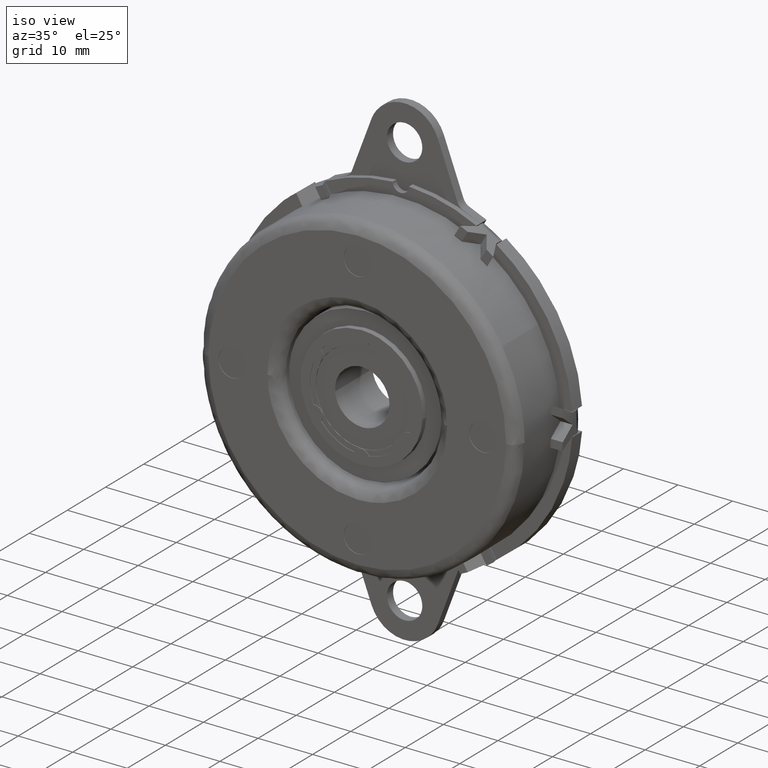
[diagram: clean part render]
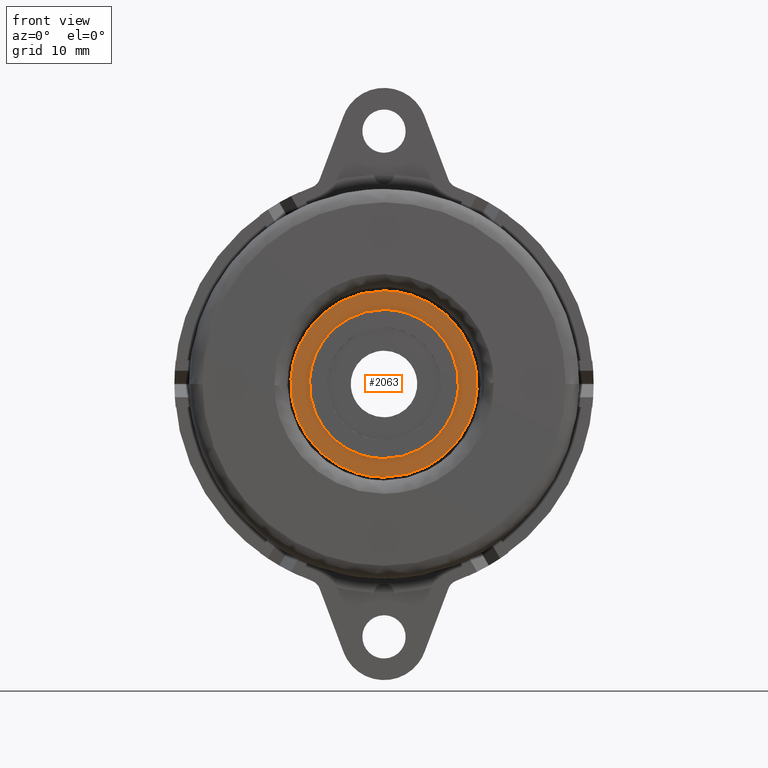
[diagram: tour spotlight — one face highlighted and labeled with its STEP entity id]
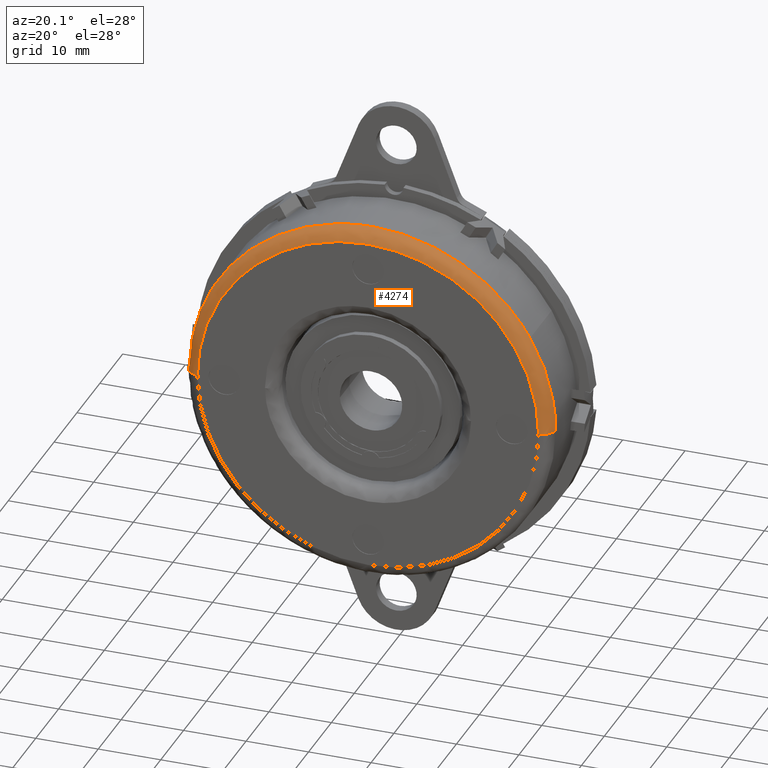
[diagram: tour spotlight — one face highlighted and labeled with its STEP entity id]
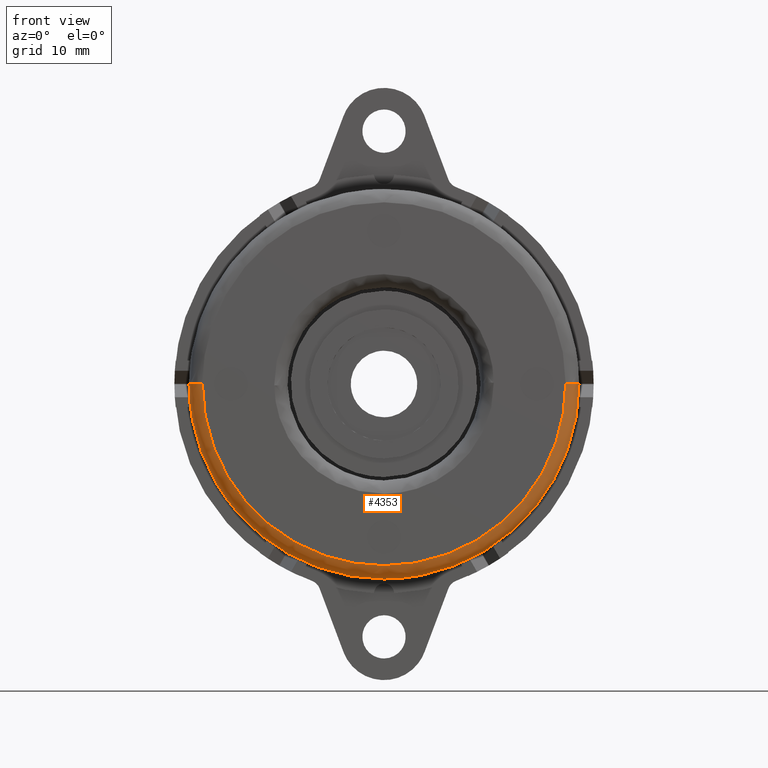
[diagram: tour spotlight — one face highlighted and labeled with its STEP entity id]
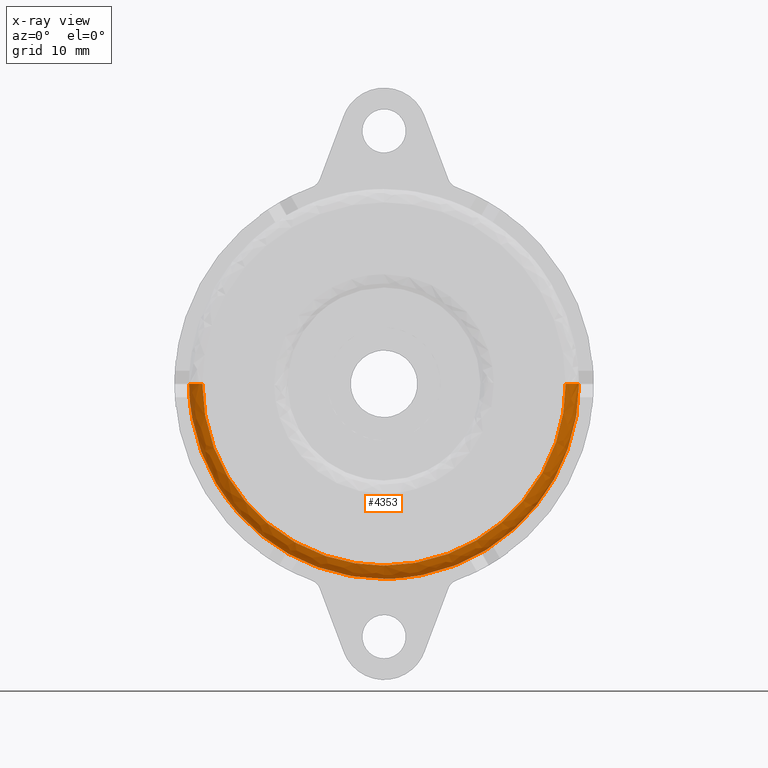
[diagram: x-ray of the same camera — body ghosted, this tour face saturated]
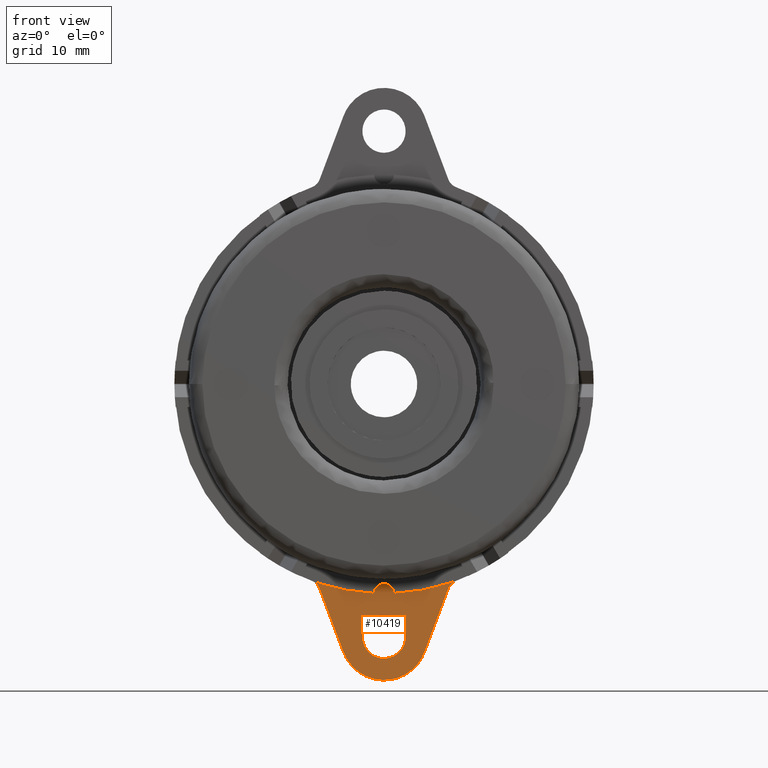
[diagram: tour spotlight — one face highlighted and labeled with its STEP entity id]
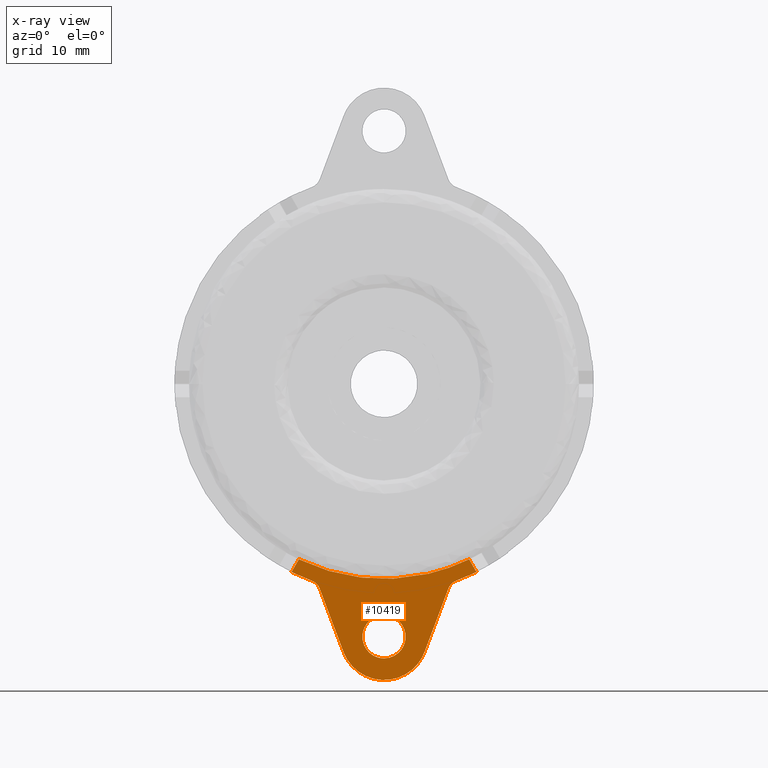
[diagram: x-ray of the same camera — body ghosted, this tour face saturated]
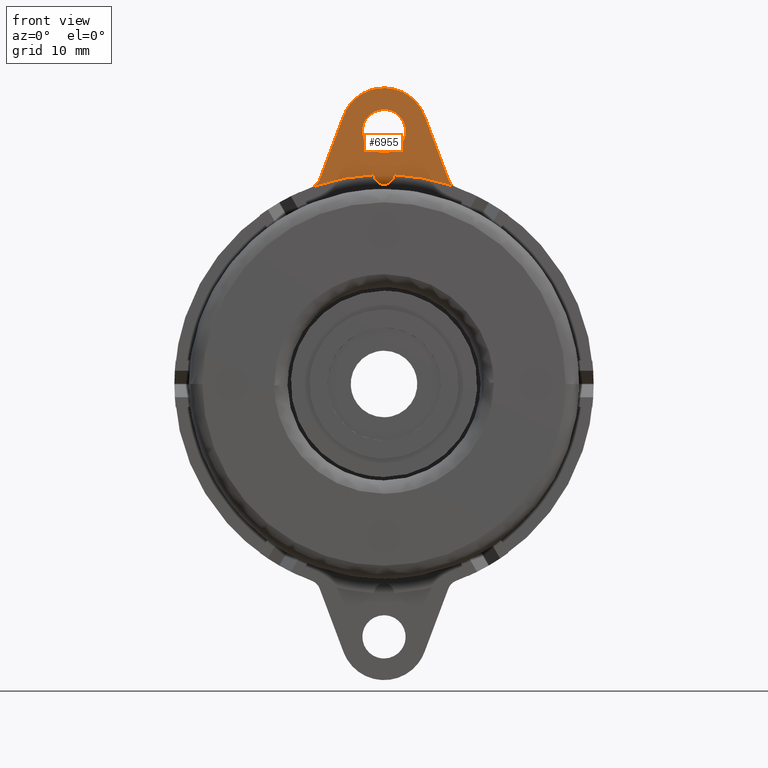
[diagram: tour spotlight — one face highlighted and labeled with its STEP entity id]
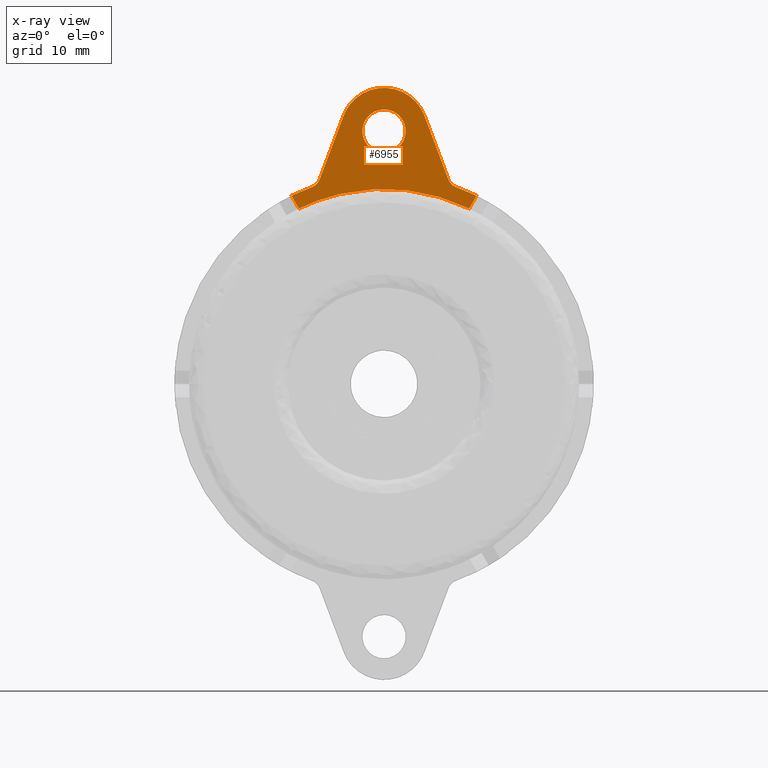
[diagram: x-ray of the same camera — body ghosted, this tour face saturated]
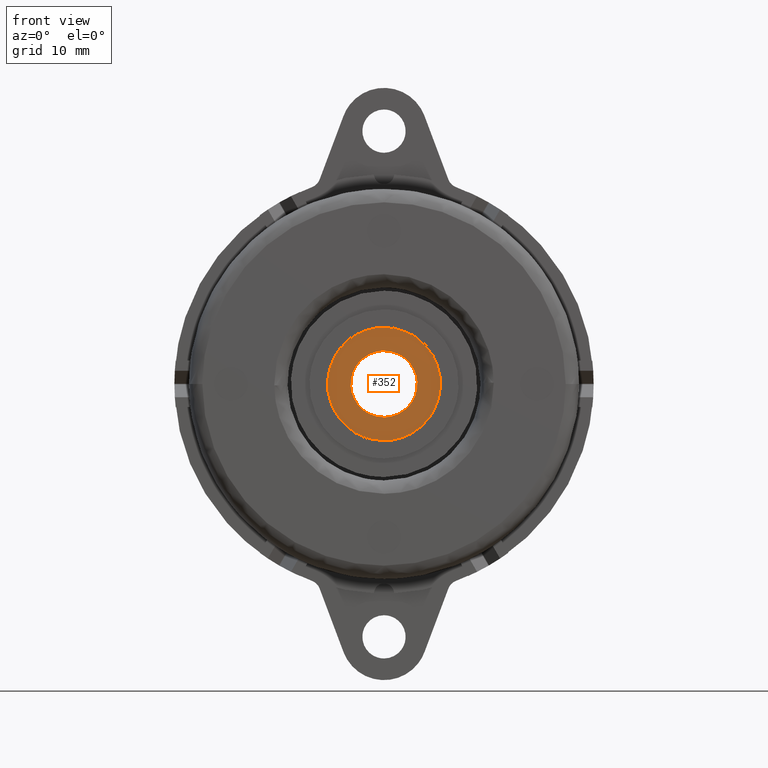
[diagram: tour spotlight — one face highlighted and labeled with its STEP entity id]
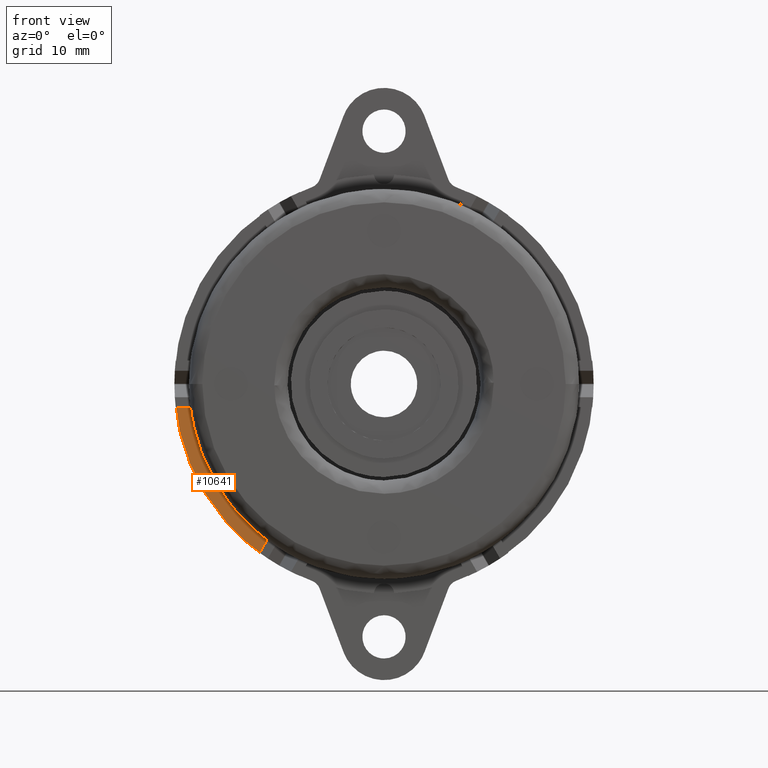
[diagram: tour spotlight — one face highlighted and labeled with its STEP entity id]
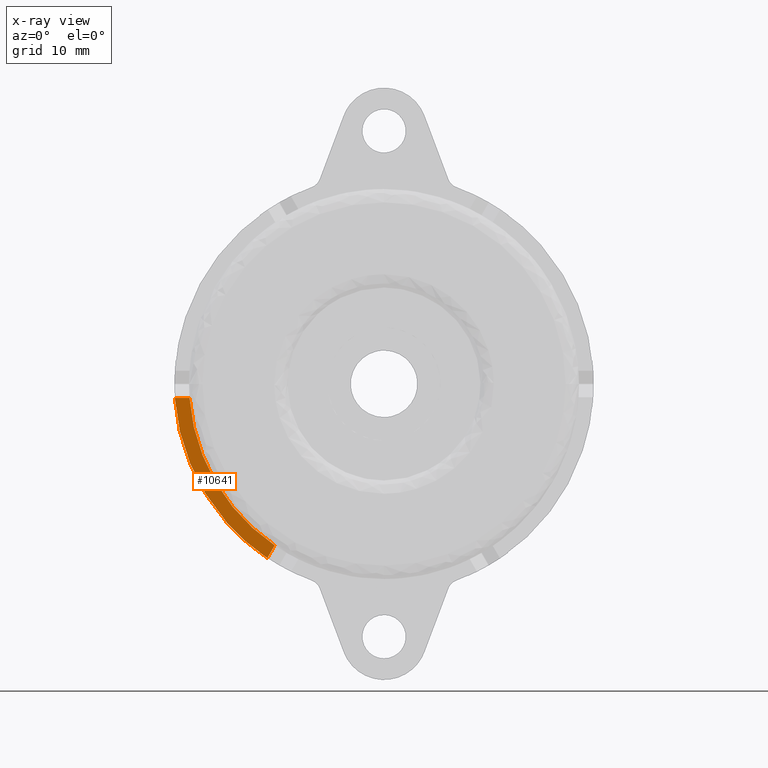
[diagram: x-ray of the same camera — body ghosted, this tour face saturated]
A machine part: a face-by-face anatomy tour. The part has 218 B-rep faces; the first image is the clean iso view, then the 7 largest visible faces are spotlighted one at a time (largest first), each with its STEP entity span.

Face 1 — front view, entity #2063. In plain terms, the highlighted face is a freeform B-spline surface patch.
Definition (entity closure, byte-faithful):
#1926=CARTESIAN_POINT('',(-15.398255422328640,-11.899999988079140,-15.398599945730570));
#1927=CARTESIAN_POINT('',(-15.398255422328640,-11.899999988079140,15.398600696749090));
#1928=CARTESIAN_POINT('',(15.398254921649620,-11.899999988079140,-15.398599945730570));
#1929=CARTESIAN_POINT('',(15.398254921649620,-11.899999988079140,15.398600696749090));
#1930=B_SPLINE_SURFACE_WITH_KNOTS('',1,1,((#1926,#1928),(#1927,#1929)),.UNSPECIFIED.,.F.,.F.,.U.,(2,2),(2,2),(0.0,30.797200642479659),(0.0,30.796510343978259),.UNSPECIFIED.);
#1931=CARTESIAN_POINT('',(0.0,-11.899999976158140,-14.0));
#1932=VERTEX_POINT('',#1931);
#1933=CARTESIAN_POINT('',(13.973888750643241,-11.899999976157600,-0.854653838687106));
#1934=VERTEX_POINT('',#1933);
#1935=CARTESIAN_POINT('',(0.0,-11.899999976158140,-14.0));
#1936=CARTESIAN_POINT('',(13.169909217247197,-11.899999976157870,-13.999999999999270));
#1937=CARTESIAN_POINT('',(13.973888750643242,-11.899999976157597,-0.854653838687106));
#1945=(BOUNDED_CURVE()B_SPLINE_CURVE(2,(#1935,#1936,#1937),.UNSPECIFIED.,.F.,.U.)B_SPLINE_CURVE_WITH_KNOTS((3,3),(0.0,0.239333279763309),.UNSPECIFIED.)CURVE()GEOMETRIC_REPRESENTATION_ITEM()RATIONAL_B_SPLINE_CURVE((1.0,0.719603621283775,0.976072722182823))REPRESENTATION_ITEM(''));
#1946=EDGE_CURVE('',#1932,#1934,#1945,.T.);
#1947=ORIENTED_EDGE('',*,*,#1946,.T.);
#1948=CARTESIAN_POINT('',(0.0,-11.899999976158140,14.0));
#1949=VERTEX_POINT('',#1948);
#1950=CARTESIAN_POINT('',(13.973888750643242,-11.899999976157597,-0.854653838687106));
#1951=CARTESIAN_POINT('',(13.999999999976678,-11.899999976157607,-0.427725792729286));
#1952=CARTESIAN_POINT('',(13.999999999977041,-11.899999976157620,1.404065E-012));
#1953=CARTESIAN_POINT('',(13.999999999988869,-11.899999976157888,14.000000000000680));
#1954=CARTESIAN_POINT('',(0.0,-11.899999976158140,14.0));
#1962=(BOUNDED_CURVE()B_SPLINE_CURVE(2,(#1950,#1951,#1952,#1953,#1954),.UNSPECIFIED.,.F.,.U.)B_SPLINE_CURVE_WITH_KNOTS((3,2,3),(0.239333279763309,0.250000000000000,0.500000000000000),.UNSPECIFIED.)CURVE()GEOMETRIC_REPRESENTATION_ITEM()RATIONAL_B_SPLINE_CURVE((0.976072722182823,0.987503159902772,1.0,0.707106781186547,1.0))REPRESENTATION_ITEM(''));
#1963=EDGE_CURVE('',#1934,#1949,#1962,.T.);
#1964=ORIENTED_EDGE('',*,*,#1963,.T.);
#1965=CARTESIAN_POINT('',(-13.973888750643241,-11.899999976157600,0.854653838687105));
#1966=VERTEX_POINT('',#1965);
#1967=CARTESIAN_POINT('',(0.0,-11.899999976158140,14.0));
#1968=CARTESIAN_POINT('',(-13.169909217247200,-11.899999976157874,13.999999999999270));
#1969=CARTESIAN_POINT('',(-13.973888750643241,-11.899999976157606,0.854653838687105));
#1977=(BOUNDED_CURVE()B_SPLINE_CURVE(2,(#1967,#1968,#1969),.UNSPECIFIED.,.F.,.U.)B_SPLINE_CURVE_WITH_KNOTS((3,3),(0.500000000000000,0.739333279763309),.UNSPECIFIED.)CURVE()GEOMETRIC_REPRESENTATION_ITEM()RATIONAL_B_SPLINE_CURVE((1.0,0.719603621283775,0.976072722182823))REPRESENTATION_ITEM(''));
#1978=EDGE_CURVE('',#1949,#1966,#1977,.T.);
#1979=ORIENTED_EDGE('',*,*,#1978,.T.);
#1980=CARTESIAN_POINT('',(-13.973888750643241,-11.899999976157606,0.854653838687105));
#1981=CARTESIAN_POINT('',(-13.999999999976678,-11.899999976157607,0.427725792729286));
#1982=CARTESIAN_POINT('',(-13.999999999977041,-11.899999976157620,-1.402864E-012));
#1983=CARTESIAN_POINT('',(-13.999999999988869,-11.899999976157888,-14.000000000000680));
#1984=CARTESIAN_POINT('',(0.0,-11.899999976158140,-14.0));
#1992=(BOUNDED_CURVE()B_SPLINE_CURVE(2,(#1980,#1981,#1982,#1983,#1984),.UNSPECIFIED.,.F.,.U.)B_SPLINE_CURVE_WITH_KNOTS((3,2,3),(0.739333279763309,0.750000000000000,1.0),.UNSPECIFIED.)CURVE()GEOMETRIC_REPRESENTATION_ITEM()RATIONAL_B_SPLINE_CURVE((0.976072722182823,0.987503159902772,1.0,0.707106781186547,1.0))REPRESENTATION_ITEM(''));
#1993=EDGE_CURVE('',#1966,#1932,#1992,.T.);
#1994=ORIENTED_EDGE('',*,*,#1993,.T.);
#1995=EDGE_LOOP('',(#1947,#1964,#1979,#1994));
#1996=FACE_OUTER_BOUND('',#1995,.T.);
#1997=CARTESIAN_POINT('',(0.0,-11.900000000000119,11.199999999999999));
#1998=VERTEX_POINT('',#1997);
#1999=CARTESIAN_POINT('',(-11.179109742319261,-11.900000000000119,0.683743642882778));
#2000=VERTEX_POINT('',#1999);
#2001=CARTESIAN_POINT('',(0.0,-11.900000000000119,11.199999999999999));
#2002=CARTESIAN_POINT('',(-10.535907949256556,-11.900000000000121,11.200000000000001));
#2003=CARTESIAN_POINT('',(-11.179109742319262,-11.900000000000128,0.683743642882776));
#2011=(BOUNDED_CURVE()B_SPLINE_CURVE(2,(#2001,#2002,#2003),.UNSPECIFIED.,.F.,.U.)B_SPLINE_CURVE_WITH_KNOTS((3,3),(0.500000000000000,0.739332962240542),.UNSPECIFIED.)CURVE()GEOMETRIC_REPRESENTATION_ITEM()RATIONAL_B_SPLINE_CURVE((1.0,0.719603993284836,0.976072041670146))REPRESENTATION_ITEM(''));
#2012=EDGE_CURVE('',#1998,#2000,#2011,.T.);
#2013=ORIENTED_EDGE('',*,*,#2012,.F.);
#2014=CARTESIAN_POINT('',(11.179109742319261,-11.900000000000119,-0.683743642882775));
#2015=VERTEX_POINT('',#2014);
#2016=CARTESIAN_POINT('',(11.179109742319259,-11.900000000000125,-0.683743642882774));
#2017=CARTESIAN_POINT('',(11.200000000000003,-11.900000000000126,-0.342190948990513));
#2018=CARTESIAN_POINT('',(11.199999999999999,-11.900000000000119,3.310987E-016));
#2019=CARTESIAN_POINT('',(11.199999999999999,-11.900000000000121,11.199999999999999));
#2020=CARTESIAN_POINT('',(0.0,-11.900000000000119,11.199999999999999));
#2028=(BOUNDED_CURVE()B_SPLINE_CURVE(2,(#2016,#2017,#2018,#2019,#2020),.UNSPECIFIED.,.F.,.U.)B_SPLINE_CURVE_WITH_KNOTS((3,2,3),(0.239332962240543,0.250000000000000,0.500000000000000),.UNSPECIFIED.)CURVE()GEOMETRIC_REPRESENTATION_ITEM()RATIONAL_B_SPLINE_CURVE((0.976072041670146,0.987502787901711,1.0,0.707106781186547,1.0))REPRESENTATION_ITEM(''));
#2029=EDGE_CURVE('',#2015,#1998,#2028,.T.);
#2030=ORIENTED_EDGE('',*,*,#2029,.F.);
#2031=CARTESIAN_POINT('',(0.0,-11.900000000000119,-11.199999999999999));
#2032=VERTEX_POINT('',#2031);
#2033=CARTESIAN_POINT('',(0.0,-11.900000000000119,-11.199999999999999));
#2034=CARTESIAN_POINT('',(10.535907949256558,-11.900000000000121,-11.200000000000001));
#2035=CARTESIAN_POINT('',(11.179109742319259,-11.900000000000125,-0.683743642882774));
#2043=(BOUNDED_CURVE()B_SPLINE_CURVE(2,(#2033,#2034,#2035),.UNSPECIFIED.,.F.,.U.)B_SPLINE_CURVE_WITH_KNOTS((3,3),(0.0,0.239332962240543),.UNSPECIFIED.)CURVE()GEOMETRIC_REPRESENTATION_ITEM()RATIONAL_B_SPLINE_CURVE((1.0,0.719603993284836,0.976072041670146))REPRESENTATION_ITEM(''));
#2044=EDGE_CURVE('',#2032,#2015,#2043,.T.);
#2045=ORIENTED_EDGE('',*,*,#2044,.F.);
#2046=CARTESIAN_POINT('',(-11.179109742319262,-11.900000000000128,0.683743642882776));
#2047=CARTESIAN_POINT('',(-11.200000000000003,-11.900000000000128,0.342190948990515));
#2048=CARTESIAN_POINT('',(-11.199999999999999,-11.900000000000119,3.310987E-016));
#2049=CARTESIAN_POINT('',(-11.199999999999999,-11.900000000000121,-11.199999999999999));
#2050=CARTESIAN_POINT('',(0.0,-11.900000000000119,-11.199999999999999));
#2058=(BOUNDED_CURVE()B_SPLINE_CURVE(2,(#2046,#2047,#2048,#2049,#2050),.UNSPECIFIED.,.F.,.U.)B_SPLINE_CURVE_WITH_KNOTS((3,2,3),(0.739332962240542,0.750000000000000,1.0),.UNSPECIFIED.)CURVE()GEOMETRIC_REPRESENTATION_ITEM()RATIONAL_B_SPLINE_CURVE((0.976072041670146,0.987502787901711,1.0,0.707106781186547,1.0))REPRESENTATION_ITEM(''));
#2059=EDGE_CURVE('',#2000,#2032,#2058,.T.);
#2060=ORIENTED_EDGE('',*,*,#2059,.F.);
#2061=EDGE_LOOP('',(#2013,#2030,#2045,#2060));
#2062=FACE_BOUND('',#2061,.T.);
#2063=ADVANCED_FACE('',(#1996,#2062),#1930,.F.);

Face 2 — auxiliary view, entity #4274. In plain terms, the highlighted face is a freeform B-spline surface patch.
Definition (entity closure, byte-faithful):
#4075=CARTESIAN_POINT('',(0.0,-14.000000000000121,27.299990000000001));
#4076=VERTEX_POINT('',#4075);
#4077=CARTESIAN_POINT('',(-27.299990000176539,-14.000000000000121,-1.770490E-015));
#4078=VERTEX_POINT('',#4077);
#4079=CARTESIAN_POINT('',(0.0,-14.000000000000121,27.299990000000001));
#4080=CARTESIAN_POINT('',(-27.299990000088272,-14.000000000000119,27.299990000000012));
#4081=CARTESIAN_POINT('',(-27.299990000176539,-14.000000000000121,-1.770490E-015));
#4089=(BOUNDED_CURVE()B_SPLINE_CURVE(2,(#4079,#4080,#4081),.UNSPECIFIED.,.F.,.U.)B_SPLINE_CURVE_WITH_KNOTS((3,3),(0.0,0.250000000000000),.UNSPECIFIED.)CURVE()GEOMETRIC_REPRESENTATION_ITEM()RATIONAL_B_SPLINE_CURVE((1.0,0.707106781186547,1.0))REPRESENTATION_ITEM(''));
#4090=EDGE_CURVE('',#4076,#4078,#4089,.T.);
#4107=CARTESIAN_POINT('',(27.299990000176539,-14.000000000000121,1.770490E-015));
#4108=VERTEX_POINT('',#4107);
#4122=CARTESIAN_POINT('',(27.299990000176539,-14.000000000000121,1.770490E-015));
#4123=CARTESIAN_POINT('',(27.299990000088268,-14.000000000000123,27.299990000000008));
#4124=CARTESIAN_POINT('',(0.0,-14.000000000000121,27.299990000000001));
#4132=(BOUNDED_CURVE()B_SPLINE_CURVE(2,(#4122,#4123,#4124),.UNSPECIFIED.,.F.,.U.)B_SPLINE_CURVE_WITH_KNOTS((3,3),(0.750000000000000,1.0),.UNSPECIFIED.)CURVE()GEOMETRIC_REPRESENTATION_ITEM()RATIONAL_B_SPLINE_CURVE((1.0,0.707106781186547,1.0))REPRESENTATION_ITEM(''));
#4133=EDGE_CURVE('',#4108,#4076,#4132,.T.);
#4168=CARTESIAN_POINT('',(-27.161288849070679,-13.995184700906501,-0.759341027726268));
#4169=CARTESIAN_POINT('',(-27.161288849070683,-13.995184700906497,-0.381881619881836));
#4170=CARTESIAN_POINT('',(-27.161288849070683,-13.995184700906503,27.161288849070669));
#4171=CARTESIAN_POINT('',(-6.652377E-015,-13.995184700906504,27.161288849070679));
#4172=CARTESIAN_POINT('',(27.161288849070669,-13.995184700906503,27.161288849070683));
#4173=CARTESIAN_POINT('',(27.161288849070683,-13.995184700906497,-0.381881619881826));
#4174=CARTESIAN_POINT('',(27.161288849070679,-13.995184700906501,-0.759341027726262));
#4175=CARTESIAN_POINT('',(-29.455468543839920,-14.154671370966973,-0.823478807670920));
#4176=CARTESIAN_POINT('',(-29.455468543839928,-14.154671370966973,-0.414137271040616));
#4177=CARTESIAN_POINT('',(-29.455468543839942,-14.154671370966971,29.455468543839913));
#4178=CARTESIAN_POINT('',(-7.214271E-015,-14.154671370966973,29.455468543839935));
#4179=CARTESIAN_POINT('',(29.455468543839913,-14.154671370966971,29.455468543839942));
#4180=CARTESIAN_POINT('',(29.455468543839928,-14.154671370966973,-0.414137271040606));
#4181=CARTESIAN_POINT('',(29.455468543839935,-14.154671370966973,-0.823478807670913));
#4182=CARTESIAN_POINT('',(-29.295122611118504,-11.860551572072801,-0.818996058489871));
#4183=CARTESIAN_POINT('',(-29.295122611118501,-11.860551572072801,-0.411882843245626));
#4184=CARTESIAN_POINT('',(-29.295122611118515,-11.860551572072803,29.295122611118501));
#4185=CARTESIAN_POINT('',(-7.174999E-015,-11.860551572072804,29.295122611118508));
#4186=CARTESIAN_POINT('',(29.295122611118501,-11.860551572072803,29.295122611118515));
#4187=CARTESIAN_POINT('',(29.295122611118511,-11.860551572072801,-0.411882843245615));
#4188=CARTESIAN_POINT('',(29.295122611118501,-11.860551572072799,-0.818996058489864));
#4196=(BOUNDED_SURFACE()B_SPLINE_SURFACE(2,2,((#4168,#4175,#4182),(#4169,#4176,#4183),(#4170,#4177,#4184),(#4171,#4178,#4185),(#4172,#4179,#4186),(#4173,#4180,#4187),(#4174,#4181,#4188)),.UNSPECIFIED.,.F.,.F.,.U.)B_SPLINE_SURFACE_WITH_KNOTS((3,1,2,1,3),(3,3),(0.0,0.970754967752641,49.508503355384647,98.046251743016654,99.017006710769294),(0.0,3.645454353994046),.UNSPECIFIED.)GEOMETRIC_REPRESENTATION_ITEM()RATIONAL_B_SPLINE_SURFACE(((0.926697838400259,0.606435486919036,0.921564728292852),(0.921332230155912,0.602924207283492,0.916228840909793),(0.647686209694202,0.423848945870745,0.644098584373797),(0.915966621911565,0.599412927647948,0.910892953526734),(0.647686209694202,0.423848945870745,0.644098584373797),(0.921332230155912,0.602924207283492,0.916228840909793),(0.926697838400259,0.606435486919036,0.921564728292852)))REPRESENTATION_ITEM('')SURFACE());
#4197=ORIENTED_EDGE('',*,*,#4090,.F.);
#4198=ORIENTED_EDGE('',*,*,#4133,.F.);
#4199=CARTESIAN_POINT('',(29.299989999999990,-12.000000000434730,5.322929E-015));
#4200=VERTEX_POINT('',#4199);
#4201=CARTESIAN_POINT('',(27.299990000176550,-14.000000000000121,3.540981E-015));
#4202=CARTESIAN_POINT('',(29.299989999565373,-13.999999999823565,3.497002E-015));
#4203=CARTESIAN_POINT('',(29.299989999999987,-12.000000000434735,3.540432E-015));
#4211=(BOUNDED_CURVE()B_SPLINE_CURVE(2,(#4201,#4202,#4203),.UNSPECIFIED.,.F.,.U.)B_SPLINE_CURVE_WITH_KNOTS((3,3),(-1.736413120980805,-0.276558718238967),.UNSPECIFIED.)CURVE()GEOMETRIC_REPRESENTATION_ITEM()RATIONAL_B_SPLINE_CURVE((0.888510409029772,0.626638727293774,0.883897567059810))REPRESENTATION_ITEM(''));
#4212=EDGE_CURVE('',#4108,#4200,#4211,.T.);
#4213=ORIENTED_EDGE('',*,*,#4212,.T.);
#4214=CARTESIAN_POINT('',(25.217121696561119,-12.000000000325221,14.919322616688611));
#4215=VERTEX_POINT('',#4214);
#4216=CARTESIAN_POINT('',(25.217121696561126,-12.000000000325221,14.919322616688603));
#4217=CARTESIAN_POINT('',(29.299989999999333,-12.000000000390974,8.018326537708255));
#4218=CARTESIAN_POINT('',(29.299989999999990,-12.000000000434730,5.322929E-015));
#4226=(BOUNDED_CURVE()B_SPLINE_CURVE(2,(#4216,#4217,#4218),.UNSPECIFIED.,.F.,.U.)B_SPLINE_CURVE_WITH_KNOTS((3,3),(0.163096429690558,0.250000000000000),.UNSPECIFIED.)CURVE()GEOMETRIC_REPRESENTATION_ITEM()RATIONAL_B_SPLINE_CURVE((0.867156176042079,0.898186134262745,1.0))REPRESENTATION_ITEM(''));
#4227=EDGE_CURVE('',#4215,#4200,#4226,.T.);
#4228=ORIENTED_EDGE('',*,*,#4227,.F.);
#4229=CARTESIAN_POINT('',(0.0,-12.000000000000121,29.299990000000001));
#4230=VERTEX_POINT('',#4229);
#4231=CARTESIAN_POINT('',(0.0,-12.000000000000121,29.299990000000001));
#4232=CARTESIAN_POINT('',(16.709020783357232,-12.000000000139755,29.299989999999603));
#4233=CARTESIAN_POINT('',(25.217121696561126,-12.000000000325221,14.919322616688603));
#4241=(BOUNDED_CURVE()B_SPLINE_CURVE(2,(#4231,#4232,#4233),.UNSPECIFIED.,.F.,.U.)B_SPLINE_CURVE_WITH_KNOTS((3,3),(0.0,0.163096429690558),.UNSPECIFIED.)CURVE()GEOMETRIC_REPRESENTATION_ITEM()RATIONAL_B_SPLINE_CURVE((1.0,0.808920646923802,0.867156176042079))REPRESENTATION_ITEM(''));
#4242=EDGE_CURVE('',#4230,#4215,#4241,.T.);
#4243=ORIENTED_EDGE('',*,*,#4242,.F.);
#4244=CARTESIAN_POINT('',(-29.299989999999990,-12.000000000434740,-1.770216E-015));
#4245=VERTEX_POINT('',#4244);
#4246=CARTESIAN_POINT('',(-29.299989999999990,-12.000000000434740,-1.770216E-015));
#4247=CARTESIAN_POINT('',(-29.299989999999998,-12.000000000217428,29.299989999999998));
#4248=CARTESIAN_POINT('',(0.0,-12.000000000000121,29.299990000000001));
#4256=(BOUNDED_CURVE()B_SPLINE_CURVE(2,(#4246,#4247,#4248),.UNSPECIFIED.,.F.,.U.)B_SPLINE_CURVE_WITH_KNOTS((3,3),(0.750000000000000,1.0),.UNSPECIFIED.)CURVE()GEOMETRIC_REPRESENTATION_ITEM()RATIONAL_B_SPLINE_CURVE((1.0,0.707106781186548,1.0))REPRESENTATION_ITEM(''));
#4257=EDGE_CURVE('',#4245,#4230,#4256,.T.);
#4258=ORIENTED_EDGE('',*,*,#4257,.F.);
#4259=CARTESIAN_POINT('',(-27.299990000176546,-14.000000000000119,-3.540981E-015));
#4260=CARTESIAN_POINT('',(-29.299989999565380,-13.999999999823569,-3.497002E-015));
#4261=CARTESIAN_POINT('',(-29.299989999999987,-12.000000000434740,-3.540432E-015));
#4269=(BOUNDED_CURVE()B_SPLINE_CURVE(2,(#4259,#4260,#4261),.UNSPECIFIED.,.F.,.U.)B_SPLINE_CURVE_WITH_KNOTS((3,3),(-1.736413120980807,-0.276558718238968),.UNSPECIFIED.)CURVE()GEOMETRIC_REPRESENTATION_ITEM()RATIONAL_B_SPLINE_CURVE((0.888510409029772,0.626638727293774,0.883897567059810))REPRESENTATION_ITEM(''));
#4270=EDGE_CURVE('',#4078,#4245,#4269,.T.);
#4271=ORIENTED_EDGE('',*,*,#4270,.F.);
#4272=EDGE_LOOP('',(#4197,#4198,#4213,#4228,#4243,#4258,#4271));
#4273=FACE_OUTER_BOUND('',#4272,.T.);
#4274=ADVANCED_FACE('',(#4273),#4196,.T.);

Face 3 — front view, entity #4353. An x-ray twin of the same camera follows (body ghosted, this face saturated) — the face is partly hidden behind the body. In plain terms, the highlighted face is a freeform B-spline surface patch.
Definition (entity closure, byte-faithful):
#4077=CARTESIAN_POINT('',(-27.299990000176539,-14.000000000000121,-1.770490E-015));
#4078=VERTEX_POINT('',#4077);
#4092=CARTESIAN_POINT('',(0.0,-14.000000000000121,-27.299990000000001));
#4093=VERTEX_POINT('',#4092);
#4094=CARTESIAN_POINT('',(-27.299990000176539,-14.000000000000121,-1.770490E-015));
#4095=CARTESIAN_POINT('',(-27.299990000088268,-14.000000000000123,-27.299990000000008));
#4096=CARTESIAN_POINT('',(0.0,-14.000000000000121,-27.299990000000001));
#4104=(BOUNDED_CURVE()B_SPLINE_CURVE(2,(#4094,#4095,#4096),.UNSPECIFIED.,.F.,.U.)B_SPLINE_CURVE_WITH_KNOTS((3,3),(0.250000000000000,0.500000000000000),.UNSPECIFIED.)CURVE()GEOMETRIC_REPRESENTATION_ITEM()RATIONAL_B_SPLINE_CURVE((1.0,0.707106781186547,1.0))REPRESENTATION_ITEM(''));
#4105=EDGE_CURVE('',#4078,#4093,#4104,.T.);
#4107=CARTESIAN_POINT('',(27.299990000176539,-14.000000000000121,1.770490E-015));
#4108=VERTEX_POINT('',#4107);
#4109=CARTESIAN_POINT('',(0.0,-14.000000000000121,-27.299990000000001));
#4110=CARTESIAN_POINT('',(27.299990000088268,-14.000000000000123,-27.299990000000008));
#4111=CARTESIAN_POINT('',(27.299990000176539,-14.000000000000121,1.770490E-015));
#4119=(BOUNDED_CURVE()B_SPLINE_CURVE(2,(#4109,#4110,#4111),.UNSPECIFIED.,.F.,.U.)B_SPLINE_CURVE_WITH_KNOTS((3,3),(0.500000000000000,0.750000000000000),.UNSPECIFIED.)CURVE()GEOMETRIC_REPRESENTATION_ITEM()RATIONAL_B_SPLINE_CURVE((1.0,0.707106781186547,1.0))REPRESENTATION_ITEM(''));
#4120=EDGE_CURVE('',#4093,#4108,#4119,.T.);
#4199=CARTESIAN_POINT('',(29.299989999999990,-12.000000000434730,5.322929E-015));
#4200=VERTEX_POINT('',#4199);
#4201=CARTESIAN_POINT('',(27.299990000176550,-14.000000000000121,3.540981E-015));
#4202=CARTESIAN_POINT('',(29.299989999565373,-13.999999999823565,3.497002E-015));
#4203=CARTESIAN_POINT('',(29.299989999999987,-12.000000000434735,3.540432E-015));
#4211=(BOUNDED_CURVE()B_SPLINE_CURVE(2,(#4201,#4202,#4203),.UNSPECIFIED.,.F.,.U.)B_SPLINE_CURVE_WITH_KNOTS((3,3),(-1.736413120980805,-0.276558718238967),.UNSPECIFIED.)CURVE()GEOMETRIC_REPRESENTATION_ITEM()RATIONAL_B_SPLINE_CURVE((0.888510409029772,0.626638727293774,0.883897567059810))REPRESENTATION_ITEM(''));
#4212=EDGE_CURVE('',#4108,#4200,#4211,.T.);
#4244=CARTESIAN_POINT('',(-29.299989999999990,-12.000000000434740,-1.770216E-015));
#4245=VERTEX_POINT('',#4244);
#4259=CARTESIAN_POINT('',(-27.299990000176546,-14.000000000000119,-3.540981E-015));
#4260=CARTESIAN_POINT('',(-29.299989999565380,-13.999999999823569,-3.497002E-015));
#4261=CARTESIAN_POINT('',(-29.299989999999987,-12.000000000434740,-3.540432E-015));
#4269=(BOUNDED_CURVE()B_SPLINE_CURVE(2,(#4259,#4260,#4261),.UNSPECIFIED.,.F.,.U.)B_SPLINE_CURVE_WITH_KNOTS((3,3),(-1.736413120980807,-0.276558718238968),.UNSPECIFIED.)CURVE()GEOMETRIC_REPRESENTATION_ITEM()RATIONAL_B_SPLINE_CURVE((0.888510409029772,0.626638727293774,0.883897567059810))REPRESENTATION_ITEM(''));
#4270=EDGE_CURVE('',#4078,#4245,#4269,.T.);
#4275=CARTESIAN_POINT('',(27.161288849070679,-13.995184700906506,0.759341027726249));
#4276=CARTESIAN_POINT('',(27.161288849070672,-13.995184700906499,0.381881619881825));
#4277=CARTESIAN_POINT('',(27.161288849070669,-13.995184700906503,-27.161288849070669));
#4278=CARTESIAN_POINT('',(3.326189E-015,-13.995184700906504,-27.161288849070679));
#4279=CARTESIAN_POINT('',(-27.161288849070669,-13.995184700906503,-27.161288849070683));
#4280=CARTESIAN_POINT('',(-27.161288849070683,-13.995184700906497,0.381881619881827));
#4281=CARTESIAN_POINT('',(-27.161288849070679,-13.995184700906501,0.759341027726259));
#4282=CARTESIAN_POINT('',(29.455468543839928,-14.154671370966971,0.823478807670899));
#4283=CARTESIAN_POINT('',(29.455468543839931,-14.154671370966973,0.414137271040604));
#4284=CARTESIAN_POINT('',(29.455468543839913,-14.154671370966971,-29.455468543839913));
#4285=CARTESIAN_POINT('',(3.607135E-015,-14.154671370966973,-29.455468543839935));
#4286=CARTESIAN_POINT('',(-29.455468543839913,-14.154671370966971,-29.455468543839942));
#4287=CARTESIAN_POINT('',(-29.455468543839928,-14.154671370966973,0.414137271040606));
#4288=CARTESIAN_POINT('',(-29.455468543839938,-14.154671370966973,0.823478807670910));
#4289=CARTESIAN_POINT('',(29.295122611118501,-11.860551572072804,0.818996058489850));
#4290=CARTESIAN_POINT('',(29.295122611118504,-11.860551572072803,0.411882843245614));
#4291=CARTESIAN_POINT('',(29.295122611118515,-11.860551572072803,-29.295122611118501));
#4292=CARTESIAN_POINT('',(3.587499E-015,-11.860551572072804,-29.295122611118508));
#4293=CARTESIAN_POINT('',(-29.295122611118501,-11.860551572072803,-29.295122611118515));
#4294=CARTESIAN_POINT('',(-29.295122611118501,-11.860551572072801,0.411882843245616));
#4295=CARTESIAN_POINT('',(-29.295122611118504,-11.860551572072801,0.818996058489861));
#4303=(BOUNDED_SURFACE()B_SPLINE_SURFACE(2,2,((#4275,#4282,#4289),(#4276,#4283,#4290),(#4277,#4284,#4291),(#4278,#4285,#4292),(#4279,#4286,#4293),(#4280,#4287,#4294),(#4281,#4288,#4295)),.UNSPECIFIED.,.F.,.F.,.U.)B_SPLINE_SURFACE_WITH_KNOTS((3,1,2,1,3),(3,3),(0.0,0.970754967752619,49.508503355384633,98.046251743016640,99.017006710769280),(0.0,3.645454353994039),.UNSPECIFIED.)GEOMETRIC_REPRESENTATION_ITEM()RATIONAL_B_SPLINE_SURFACE(((0.926697838400259,0.606435486919035,0.921564728292852),(0.921332230155912,0.602924207283492,0.916228840909793),(0.647686209694202,0.423848945870745,0.644098584373797),(0.915966621911565,0.599412927647948,0.910892953526734),(0.647686209694202,0.423848945870745,0.644098584373797),(0.921332230155912,0.602924207283492,0.916228840909793),(0.926697838400259,0.606435486919036,0.921564728292852)))REPRESENTATION_ITEM('')SURFACE());
#4304=ORIENTED_EDGE('',*,*,#4105,.F.);
#4305=ORIENTED_EDGE('',*,*,#4270,.T.);
#4306=CARTESIAN_POINT('',(-25.217121696561129,-12.000000000325221,-14.919322616688600));
#4307=VERTEX_POINT('',#4306);
#4308=CARTESIAN_POINT('',(-25.217121696561126,-12.000000000325221,-14.919322616688603));
#4309=CARTESIAN_POINT('',(-29.299989999999340,-12.000000000390974,-8.018326537708250));
#4310=CARTESIAN_POINT('',(-29.299989999999990,-12.000000000434740,-1.770216E-015));
#4318=(BOUNDED_CURVE()B_SPLINE_CURVE(2,(#4308,#4309,#4310),.UNSPECIFIED.,.F.,.U.)B_SPLINE_CURVE_WITH_KNOTS((3,3),(0.663096429690558,0.750000000000000),.UNSPECIFIED.)CURVE()GEOMETRIC_REPRESENTATION_ITEM()RATIONAL_B_SPLINE_CURVE((0.867156176042079,0.898186134262745,1.0))REPRESENTATION_ITEM(''));
#4319=EDGE_CURVE('',#4307,#4245,#4318,.T.);
#4320=ORIENTED_EDGE('',*,*,#4319,.F.);
#4321=CARTESIAN_POINT('',(0.0,-12.000000000000121,-29.299990000000001));
#4322=VERTEX_POINT('',#4321);
#4323=CARTESIAN_POINT('',(0.0,-12.000000000000121,-29.299990000000001));
#4324=CARTESIAN_POINT('',(-16.709020783357232,-12.000000000139751,-29.299989999999603));
#4325=CARTESIAN_POINT('',(-25.217121696561126,-12.000000000325221,-14.919322616688603));
#4333=(BOUNDED_CURVE()B_SPLINE_CURVE(2,(#4323,#4324,#4325),.UNSPECIFIED.,.F.,.U.)B_SPLINE_CURVE_WITH_KNOTS((3,3),(0.500000000000000,0.663096429690558),.UNSPECIFIED.)CURVE()GEOMETRIC_REPRESENTATION_ITEM()RATIONAL_B_SPLINE_CURVE((1.0,0.808920646923802,0.867156176042079))REPRESENTATION_ITEM(''));
#4334=EDGE_CURVE('',#4322,#4307,#4333,.T.);
#4335=ORIENTED_EDGE('',*,*,#4334,.F.);
#4336=CARTESIAN_POINT('',(29.299989999999990,-12.000000000434730,5.322929E-015));
#4337=CARTESIAN_POINT('',(29.299990000000005,-12.000000000217424,-29.299990000000005));
#4338=CARTESIAN_POINT('',(0.0,-12.000000000000121,-29.299990000000001));
#4346=(BOUNDED_CURVE()B_SPLINE_CURVE(2,(#4336,#4337,#4338),.UNSPECIFIED.,.F.,.U.)B_SPLINE_CURVE_WITH_KNOTS((3,3),(0.250000000000000,0.500000000000000),.UNSPECIFIED.)CURVE()GEOMETRIC_REPRESENTATION_ITEM()RATIONAL_B_SPLINE_CURVE((1.0,0.707106781186547,1.0))REPRESENTATION_ITEM(''));
#4347=EDGE_CURVE('',#4200,#4322,#4346,.T.);
#4348=ORIENTED_EDGE('',*,*,#4347,.F.);
#4349=ORIENTED_EDGE('',*,*,#4212,.F.);
#4350=ORIENTED_EDGE('',*,*,#4120,.F.);
#4351=EDGE_LOOP('',(#4304,#4305,#4320,#4335,#4348,#4349,#4350));
#4352=FACE_OUTER_BOUND('',#4351,.T.);
#4353=ADVANCED_FACE('',(#4352),#4303,.T.);

Face 4 — front view, entity #10419. An x-ray twin of the same camera follows (body ghosted, this face saturated) — the face is partly hidden behind the body. In plain terms, the highlighted face is a freeform B-spline surface patch.
Definition (entity closure, byte-faithful):
#3410=CARTESIAN_POINT('',(0.0,-1.599999999999935,-34.749999999999993));
#3411=VERTEX_POINT('',#3410);
#3412=CARTESIAN_POINT('',(-3.239981334630315,-1.599999999999935,-37.745007938854627));
#3413=VERTEX_POINT('',#3412);
#3414=CARTESIAN_POINT('',(0.0,-1.599999999999935,-34.749999999999993));
#3415=CARTESIAN_POINT('',(-3.004269097861388,-1.599999999999936,-34.749999999999986));
#3416=CARTESIAN_POINT('',(-3.239981334630315,-1.599999999999935,-37.745007938854634));
#3424=(BOUNDED_CURVE()B_SPLINE_CURVE(2,(#3414,#3415,#3416),.UNSPECIFIED.,.F.,.U.)B_SPLINE_CURVE_WITH_KNOTS((3,3),(0.0,0.236331300631186),.UNSPECIFIED.)CURVE()GEOMETRIC_REPRESENTATION_ITEM()RATIONAL_B_SPLINE_CURVE((1.0,0.723120658607048,0.969723356168517))REPRESENTATION_ITEM(''));
#3425=EDGE_CURVE('',#3411,#3413,#3424,.T.);
#3466=CARTESIAN_POINT('',(3.239981334630315,-1.599999999999935,-38.254992061145359));
#3467=VERTEX_POINT('',#3466);
#3473=CARTESIAN_POINT('',(3.239981334630317,-1.599999999999936,-38.254992061145366));
#3474=CARTESIAN_POINT('',(3.250000000000000,-1.599999999999935,-38.127692847789930));
#3475=CARTESIAN_POINT('',(3.250000000000000,-1.599999999999935,-38.0));
#3476=CARTESIAN_POINT('',(3.250000000000000,-1.599999999999935,-34.749999999999993));
#3477=CARTESIAN_POINT('',(0.0,-1.599999999999935,-34.749999999999993));
#3485=(BOUNDED_CURVE()B_SPLINE_CURVE(2,(#3473,#3474,#3475,#3476,#3477),.UNSPECIFIED.,.F.,.U.)B_SPLINE_CURVE_WITH_KNOTS((3,2,3),(0.736331300631187,0.750000000000000,1.0),.UNSPECIFIED.)CURVE()GEOMETRIC_REPRESENTATION_ITEM()RATIONAL_B_SPLINE_CURVE((0.969723356168518,0.983986122579500,1.0,0.707106781186547,1.0))REPRESENTATION_ITEM(''));
#3486=EDGE_CURVE('',#3467,#3411,#3485,.T.);
#3509=CARTESIAN_POINT('',(0.0,-1.599999999999935,-41.250000000000000));
#3510=VERTEX_POINT('',#3509);
#3511=CARTESIAN_POINT('',(-3.239981334630316,-1.599999999999935,-37.745007938854641));
#3512=CARTESIAN_POINT('',(-3.250000000000000,-1.599999999999935,-37.872307152210070));
#3513=CARTESIAN_POINT('',(-3.250000000000000,-1.599999999999935,-38.0));
#3514=CARTESIAN_POINT('',(-3.250000000000000,-1.599999999999935,-41.249999999999993));
#3515=CARTESIAN_POINT('',(0.0,-1.599999999999935,-41.250000000000000));
#3523=(BOUNDED_CURVE()B_SPLINE_CURVE(2,(#3511,#3512,#3513,#3514,#3515),.UNSPECIFIED.,.F.,.U.)B_SPLINE_CURVE_WITH_KNOTS((3,2,3),(0.236331300631187,0.250000000000000,0.500000000000000),.UNSPECIFIED.)CURVE()GEOMETRIC_REPRESENTATION_ITEM()RATIONAL_B_SPLINE_CURVE((0.969723356168518,0.983986122579499,1.0,0.707106781186547,1.0))REPRESENTATION_ITEM(''));
#3524=EDGE_CURVE('',#3413,#3510,#3523,.T.);
#3526=CARTESIAN_POINT('',(0.0,-1.599999999999935,-41.250000000000000));
#3527=CARTESIAN_POINT('',(3.004269097861402,-1.599999999999935,-41.250000000000000));
#3528=CARTESIAN_POINT('',(3.239981334630317,-1.599999999999936,-38.254992061145359));
#3536=(BOUNDED_CURVE()B_SPLINE_CURVE(2,(#3526,#3527,#3528),.UNSPECIFIED.,.F.,.U.)B_SPLINE_CURVE_WITH_KNOTS((3,3),(0.500000000000000,0.736331300631187),.UNSPECIFIED.)CURVE()GEOMETRIC_REPRESENTATION_ITEM()RATIONAL_B_SPLINE_CURVE((1.0,0.723120658607048,0.969723356168519))REPRESENTATION_ITEM(''));
#3537=EDGE_CURVE('',#3510,#3467,#3536,.T.);
#4913=CARTESIAN_POINT('',(-9.671450000000000,-1.599999999999935,-30.744579999999999));
#4914=VERTEX_POINT('',#4913);
#4920=CARTESIAN_POINT('',(-10.854382849883621,-1.599999999999935,-29.570802710581798));
#4921=VERTEX_POINT('',#4920);
#4922=CARTESIAN_POINT('',(-9.671450000000000,-1.599999999999935,-30.744579999999999));
#4923=CARTESIAN_POINT('',(-9.993957150428612,-1.599999999999935,-29.886634176070611));
#4924=CARTESIAN_POINT('',(-10.854382849883621,-1.599999999999935,-29.570802710581798));
#4932=(BOUNDED_CURVE()B_SPLINE_CURVE(2,(#4922,#4923,#4924),.UNSPECIFIED.,.F.,.U.)CURVE()GEOMETRIC_REPRESENTATION_ITEM()QUASI_UNIFORM_CURVE()RATIONAL_B_SPLINE_CURVE((1.0,0.909083217708857,1.0))REPRESENTATION_ITEM(''));
#4933=EDGE_CURVE('',#4914,#4921,#4932,.T.);
#4955=CARTESIAN_POINT('',(-6.086563775541360,-1.599999999999935,-40.281171060281849));
#4956=VERTEX_POINT('',#4955);
#4962=CARTESIAN_POINT('',(-6.086563775541360,-1.599999999999935,-40.281171060281849));
#4963=CARTESIAN_POINT('',(-9.671450000000000,-1.599999999999935,-30.744579999999999));
#4964=QUASI_UNIFORM_CURVE('',1,(#4962,#4963),.UNSPECIFIED.,.F.,.U.);
#4965=EDGE_CURVE('',#4956,#4914,#4964,.T.);
#4989=CARTESIAN_POINT('',(6.082070969590860,-1.599999999999935,-40.293122918829198));
#4990=VERTEX_POINT('',#4989);
#4998=CARTESIAN_POINT('',(-6.086563775541360,-1.599999999999935,-40.281171060281849));
#4999=CARTESIAN_POINT('',(-5.964254382065979,-1.599999999999938,-40.607531476206887));
#5000=CARTESIAN_POINT('',(-5.588377734560694,-1.599999999999933,-41.408179386096442));
#5001=CARTESIAN_POINT('',(-4.821011067116740,-1.599999999999932,-42.433624949335929));
#5002=CARTESIAN_POINT('',(-3.873041534796883,-1.599999999999940,-43.257214524648113));
#5003=CARTESIAN_POINT('',(-2.908841314649994,-1.599999999999942,-43.848152387946051));
#5004=CARTESIAN_POINT('',(-1.914127299246977,-1.599999999999931,-44.244866478210866));
#5005=CARTESIAN_POINT('',(-0.687209837933879,-1.599999999999934,-44.505374267065797));
#5006=CARTESIAN_POINT('',(0.592699251209250,-1.599999999999943,-44.524807986832663));
#5007=CARTESIAN_POINT('',(1.722942747456688,-1.599999999999931,-44.292708556189623));
#5008=CARTESIAN_POINT('',(2.687306487728644,-1.599999999999943,-43.941622834938322));
#5009=CARTESIAN_POINT('',(3.506233795616434,-1.599999999999941,-43.508644016132102));
#5010=CARTESIAN_POINT('',(4.470626340047524,-1.599999999999936,-42.772648872087132));
#5011=CARTESIAN_POINT('',(5.392152946810403,-1.599999999999932,-41.742013025460807));
#5012=CARTESIAN_POINT('',(5.886926012965881,-1.599999999999939,-40.811162757868523));
#5013=CARTESIAN_POINT('',(6.082070969590860,-1.599999999999935,-40.293122918829198));
#5014=B_SPLINE_CURVE_WITH_KNOTS('',3,(#4998,#4999,#5000,#5001,#5002,#5003,#5004,#5005,#5006,#5007,#5008,#5009,#5010,#5011,#5012,#5013),.UNSPECIFIED.,.F.,.U.,(4,1,1,1,1,1,1,1,1,1,1,1,1,4),(0.000000179559231,1.045594793932438,2.644841266913614,3.813493682171519,4.797625124988748,6.027790915779624,7.011911153779833,8.549604092006060,9.841270131721391,10.456352060261620,11.625004627993750,12.609138059828849,14.085351833612220,15.746040266302570),.UNSPECIFIED.);
#5015=EDGE_CURVE('',#4956,#4990,#5014,.T.);
#5045=CARTESIAN_POINT('',(9.671451458862871,-1.599999999999935,-30.744576119101751));
#5046=VERTEX_POINT('',#5045);
#5047=CARTESIAN_POINT('',(9.671451458862871,-1.599999999999935,-30.744576119101751));
#5048=CARTESIAN_POINT('',(6.082070969590860,-1.599999999999935,-40.293122918829198));
#5049=QUASI_UNIFORM_CURVE('',1,(#5047,#5048),.UNSPECIFIED.,.F.,.U.);
#5050=EDGE_CURVE('',#5046,#4990,#5049,.T.);
#5097=CARTESIAN_POINT('',(10.854382849883621,-1.599999999999935,-29.570802710581798));
#5098=VERTEX_POINT('',#5097);
#5104=CARTESIAN_POINT('',(10.854382849883621,-1.599999999999935,-29.570802710581798));
#5105=CARTESIAN_POINT('',(9.993959505199296,-1.599999999999935,-29.886633311718615));
#5106=CARTESIAN_POINT('',(9.671451458862853,-1.599999999999935,-30.744576119101740));
#5114=(BOUNDED_CURVE()B_SPLINE_CURVE(2,(#5104,#5105,#5106),.UNSPECIFIED.,.F.,.U.)CURVE()GEOMETRIC_REPRESENTATION_ITEM()QUASI_UNIFORM_CURVE()RATIONAL_B_SPLINE_CURVE((1.0,0.909083649533596,1.0))REPRESENTATION_ITEM(''));
#5115=EDGE_CURVE('',#5098,#5046,#5114,.T.);
#6816=CARTESIAN_POINT('',(13.896307676503300,-1.599999999999935,-28.269110933313009));
#6817=VERTEX_POINT('',#6816);
#6818=CARTESIAN_POINT('',(10.854382849883610,-1.599999999999935,-29.570802710581809));
#6819=CARTESIAN_POINT('',(12.409574641181951,-1.599999999999935,-28.999947489877645));
#6820=CARTESIAN_POINT('',(13.896307676503280,-1.599999999999935,-28.269110933312991));
#6828=(BOUNDED_CURVE()B_SPLINE_CURVE(2,(#6818,#6819,#6820),.UNSPECIFIED.,.F.,.U.)CURVE()GEOMETRIC_REPRESENTATION_ITEM()QUASI_UNIFORM_CURVE()RATIONAL_B_SPLINE_CURVE((1.0,0.998619895711782,1.0))REPRESENTATION_ITEM(''));
#6829=EDGE_CURVE('',#5098,#6817,#6828,.T.);
#6869=CARTESIAN_POINT('',(-13.896307676503300,-1.599999999999935,-28.269110933313009));
#6870=VERTEX_POINT('',#6869);
#6871=CARTESIAN_POINT('',(-13.896307676503289,-1.599999999999935,-28.269110933312980));
#6872=CARTESIAN_POINT('',(-12.409574641181969,-1.599999999999935,-28.999947489877641));
#6873=CARTESIAN_POINT('',(-10.854382849883621,-1.599999999999935,-29.570802710581809));
#6881=(BOUNDED_CURVE()B_SPLINE_CURVE(2,(#6871,#6872,#6873),.UNSPECIFIED.,.F.,.U.)CURVE()GEOMETRIC_REPRESENTATION_ITEM()QUASI_UNIFORM_CURVE()RATIONAL_B_SPLINE_CURVE((1.0,0.998619895711782,1.0))REPRESENTATION_ITEM(''));
#6882=EDGE_CURVE('',#6870,#4921,#6881,.T.);
#10372=CARTESIAN_POINT('',(-15.284548759518501,-1.599999999999910,-25.453153620268001));
#10373=CARTESIAN_POINT('',(15.284549504974530,-1.599999999999910,-25.453153620268001));
#10374=CARTESIAN_POINT('',(-15.284548759518501,-1.599999999999910,-45.406126010875759));
#10375=CARTESIAN_POINT('',(15.284549504974530,-1.599999999999910,-45.406126010875759));
#10376=B_SPLINE_SURFACE_WITH_KNOTS('',1,1,((#10372,#10374),(#10373,#10375)),.UNSPECIFIED.,.F.,.F.,.U.,(2,2),(2,2),(0.0,30.569098264493029),(0.0,19.952972390607759),.UNSPECIFIED.);
#10377=ORIENTED_EDGE('',*,*,#5115,.F.);
#10378=ORIENTED_EDGE('',*,*,#6829,.T.);
#10379=CARTESIAN_POINT('',(12.793677311467841,-1.599999999999935,-26.359282278733652));
#10380=VERTEX_POINT('',#10379);
#10381=CARTESIAN_POINT('',(13.896307676503300,-1.599999999999935,-28.269110933313009));
#10382=CARTESIAN_POINT('',(12.793677311467841,-1.599999999999935,-26.359282278733652));
#10383=QUASI_UNIFORM_CURVE('',1,(#10381,#10382),.UNSPECIFIED.,.F.,.U.);
#10384=EDGE_CURVE('',#6817,#10380,#10383,.T.);
#10385=ORIENTED_EDGE('',*,*,#10384,.T.);
#10386=CARTESIAN_POINT('',(-12.793669727585661,-1.599999999999935,-26.359285983434098));
#10387=VERTEX_POINT('',#10386);
#10388=CARTESIAN_POINT('',(-12.793669727585661,-1.599999999999935,-26.359285983434098));
#10389=CARTESIAN_POINT('',(0.000004690992700,-1.599999999999935,-32.568788190318799));
#10390=CARTESIAN_POINT('',(12.793677311467841,-1.599999999999935,-26.359282278733652));
#10398=(BOUNDED_CURVE()B_SPLINE_CURVE(2,(#10388,#10389,#10390),.UNSPECIFIED.,.F.,.U.)CURVE()GEOMETRIC_REPRESENTATION_ITEM()QUASI_UNIFORM_CURVE()RATIONAL_B_SPLINE_CURVE((1.0,0.899634301060939,1.0))REPRESENTATION_ITEM(''));
#10399=EDGE_CURVE('',#10387,#10380,#10398,.T.);
#10400=ORIENTED_EDGE('',*,*,#10399,.F.);
#10401=CARTESIAN_POINT('',(-12.793669727585661,-1.599999999999935,-26.359285983434098));
#10402=CARTESIAN_POINT('',(-13.896307676503300,-1.599999999999935,-28.269110933313009));
#10403=QUASI_UNIFORM_CURVE('',1,(#10401,#10402),.UNSPECIFIED.,.F.,.U.);
#10404=EDGE_CURVE('',#10387,#6870,#10403,.T.);
#10405=ORIENTED_EDGE('',*,*,#10404,.T.);
#10406=ORIENTED_EDGE('',*,*,#6882,.T.);
#10407=ORIENTED_EDGE('',*,*,#4933,.F.);
#10408=ORIENTED_EDGE('',*,*,#4965,.F.);
#10409=ORIENTED_EDGE('',*,*,#5015,.T.);
#10410=ORIENTED_EDGE('',*,*,#5050,.F.);
#10411=EDGE_LOOP('',(#10377,#10378,#10385,#10400,#10405,#10406,#10407,#10408,#10409,#10410));
#10412=FACE_OUTER_BOUND('',#10411,.T.);
#10413=ORIENTED_EDGE('',*,*,#3537,.F.);
#10414=ORIENTED_EDGE('',*,*,#3524,.F.);
#10415=ORIENTED_EDGE('',*,*,#3425,.F.);
#10416=ORIENTED_EDGE('',*,*,#3486,.F.);
#10417=EDGE_LOOP('',(#10413,#10414,#10415,#10416));
#10418=FACE_BOUND('',#10417,.T.);
#10419=ADVANCED_FACE('',(#10412,#10418),#10376,.F.);

Face 5 — front view, entity #6955. An x-ray twin of the same camera follows (body ghosted, this face saturated) — the face is partly hidden behind the body. In plain terms, the highlighted face is a freeform B-spline surface patch.
Definition (entity closure, byte-faithful):
#3592=CARTESIAN_POINT('',(0.0,-1.599999999999935,41.250000000000000));
#3593=VERTEX_POINT('',#3592);
#3594=CARTESIAN_POINT('',(-3.239981334630315,-1.599999999999935,38.254992061145359));
#3595=VERTEX_POINT('',#3594);
#3596=CARTESIAN_POINT('',(0.0,-1.599999999999935,41.250000000000000));
#3597=CARTESIAN_POINT('',(-3.004269097861404,-1.599999999999935,41.250000000000007));
#3598=CARTESIAN_POINT('',(-3.239981334630316,-1.599999999999935,38.254992061145352));
#3606=(BOUNDED_CURVE()B_SPLINE_CURVE(2,(#3596,#3597,#3598),.UNSPECIFIED.,.F.,.U.)B_SPLINE_CURVE_WITH_KNOTS((3,3),(0.0,0.236331300631187),.UNSPECIFIED.)CURVE()GEOMETRIC_REPRESENTATION_ITEM()RATIONAL_B_SPLINE_CURVE((1.0,0.723120658607047,0.969723356168519))REPRESENTATION_ITEM(''));
#3607=EDGE_CURVE('',#3593,#3595,#3606,.T.);
#3648=CARTESIAN_POINT('',(3.239981334630315,-1.599999999999935,37.745007938854641));
#3649=VERTEX_POINT('',#3648);
#3655=CARTESIAN_POINT('',(3.239981334630317,-1.599999999999936,37.745007938854641));
#3656=CARTESIAN_POINT('',(3.250000000000000,-1.599999999999935,37.872307152210077));
#3657=CARTESIAN_POINT('',(3.250000000000000,-1.599999999999935,38.0));
#3658=CARTESIAN_POINT('',(3.250000000000000,-1.599999999999935,41.249999999999993));
#3659=CARTESIAN_POINT('',(0.0,-1.599999999999935,41.250000000000000));
#3667=(BOUNDED_CURVE()B_SPLINE_CURVE(2,(#3655,#3656,#3657,#3658,#3659),.UNSPECIFIED.,.F.,.U.)B_SPLINE_CURVE_WITH_KNOTS((3,2,3),(0.736331300631187,0.750000000000000,1.0),.UNSPECIFIED.)CURVE()GEOMETRIC_REPRESENTATION_ITEM()RATIONAL_B_SPLINE_CURVE((0.969723356168518,0.983986122579500,1.0,0.707106781186547,1.0))REPRESENTATION_ITEM(''));
#3668=EDGE_CURVE('',#3649,#3593,#3667,.T.);
#3691=CARTESIAN_POINT('',(0.0,-1.599999999999935,34.749999999999993));
#3692=VERTEX_POINT('',#3691);
#3693=CARTESIAN_POINT('',(-3.239981334630317,-1.599999999999935,38.254992061145352));
#3694=CARTESIAN_POINT('',(-3.250000000000000,-1.599999999999936,38.127692847789930));
#3695=CARTESIAN_POINT('',(-3.250000000000000,-1.599999999999935,38.0));
#3696=CARTESIAN_POINT('',(-3.250000000000000,-1.599999999999935,34.749999999999993));
#3697=CARTESIAN_POINT('',(0.0,-1.599999999999935,34.749999999999993));
#3705=(BOUNDED_CURVE()B_SPLINE_CURVE(2,(#3693,#3694,#3695,#3696,#3697),.UNSPECIFIED.,.F.,.U.)B_SPLINE_CURVE_WITH_KNOTS((3,2,3),(0.236331300631187,0.250000000000000,0.500000000000000),.UNSPECIFIED.)CURVE()GEOMETRIC_REPRESENTATION_ITEM()RATIONAL_B_SPLINE_CURVE((0.969723356168518,0.983986122579500,1.0,0.707106781186547,1.0))REPRESENTATION_ITEM(''));
#3706=EDGE_CURVE('',#3595,#3692,#3705,.T.);
#3708=CARTESIAN_POINT('',(0.0,-1.599999999999935,34.749999999999993));
#3709=CARTESIAN_POINT('',(3.004269097861396,-1.599999999999936,34.749999999999993));
#3710=CARTESIAN_POINT('',(3.239981334630316,-1.599999999999935,37.745007938854648));
#3718=(BOUNDED_CURVE()B_SPLINE_CURVE(2,(#3708,#3709,#3710),.UNSPECIFIED.,.F.,.U.)B_SPLINE_CURVE_WITH_KNOTS((3,3),(0.500000000000000,0.736331300631187),.UNSPECIFIED.)CURVE()GEOMETRIC_REPRESENTATION_ITEM()RATIONAL_B_SPLINE_CURVE((1.0,0.723120658607048,0.969723356168518))REPRESENTATION_ITEM(''));
#3719=EDGE_CURVE('',#3692,#3649,#3718,.T.);
#4671=CARTESIAN_POINT('',(-10.854370548537000,-1.599999999999935,29.570807225962799));
#4672=VERTEX_POINT('',#4671);
#4678=CARTESIAN_POINT('',(-9.671438133579720,-1.599999999999935,30.744581567338049));
#4679=VERTEX_POINT('',#4678);
#4680=CARTESIAN_POINT('',(-10.854370548537000,-1.599999999999935,29.570807225962799));
#4681=CARTESIAN_POINT('',(-9.993946207866655,-1.599999999999935,29.886637786530553));
#4682=CARTESIAN_POINT('',(-9.671438133579731,-1.599999999999935,30.744581567338049));
#4690=(BOUNDED_CURVE()B_SPLINE_CURVE(2,(#4680,#4681,#4682),.UNSPECIFIED.,.F.,.U.)CURVE()GEOMETRIC_REPRESENTATION_ITEM()QUASI_UNIFORM_CURVE()RATIONAL_B_SPLINE_CURVE((1.0,0.909083490980492,1.0))REPRESENTATION_ITEM(''));
#4691=EDGE_CURVE('',#4672,#4679,#4690,.T.);
#5152=CARTESIAN_POINT('',(9.671438133579720,-1.599999999999935,30.744581567338049));
#5153=VERTEX_POINT('',#5152);
#5159=CARTESIAN_POINT('',(10.854370548537000,-1.599999999999935,29.570807225962799));
#5160=VERTEX_POINT('',#5159);
#5161=CARTESIAN_POINT('',(9.671438133579731,-1.599999999999935,30.744581567338049));
#5162=CARTESIAN_POINT('',(9.993946207866655,-1.599999999999935,29.886637786530549));
#5163=CARTESIAN_POINT('',(10.854370548537000,-1.599999999999935,29.570807225962799));
#5171=(BOUNDED_CURVE()B_SPLINE_CURVE(2,(#5161,#5162,#5163),.UNSPECIFIED.,.F.,.U.)CURVE()GEOMETRIC_REPRESENTATION_ITEM()QUASI_UNIFORM_CURVE()RATIONAL_B_SPLINE_CURVE((1.0,0.909083490980492,1.0))REPRESENTATION_ITEM(''));
#5172=EDGE_CURVE('',#5153,#5160,#5171,.T.);
#5194=CARTESIAN_POINT('',(6.084321116031120,-1.599999999999935,40.287145941346502));
#5195=VERTEX_POINT('',#5194);
#5203=CARTESIAN_POINT('',(6.084321116031120,-1.599999999999935,40.287145941346502));
#5204=CARTESIAN_POINT('',(9.671438133579720,-1.599999999999935,30.744581567338049));
#5205=QUASI_UNIFORM_CURVE('',1,(#5203,#5204),.UNSPECIFIED.,.F.,.U.);
#5206=EDGE_CURVE('',#5195,#5153,#5205,.T.);
#5230=CARTESIAN_POINT('',(-6.088357968498130,-1.599999999999935,40.276378098520851));
#5231=VERTEX_POINT('',#5230);
#5239=CARTESIAN_POINT('',(6.084321116031120,-1.599999999999935,40.287145941346502));
#5240=CARTESIAN_POINT('',(5.925562471073081,-1.599999999999934,40.709684770414270));
#5241=CARTESIAN_POINT('',(5.528695548554063,-1.599999999999941,41.503002099990532));
#5242=CARTESIAN_POINT('',(4.826864940642767,-1.599999999999929,42.393778693002297));
#5243=CARTESIAN_POINT('',(4.042894941410676,-1.599999999999931,43.120029805424977));
#5244=CARTESIAN_POINT('',(3.193039607477380,-1.599999999999953,43.702021189038391));
#5245=CARTESIAN_POINT('',(2.158684611823451,-1.599999999999907,44.164558977854909));
#5246=CARTESIAN_POINT('',(1.181419501264186,-1.599999999999946,44.414128716893487));
#5247=CARTESIAN_POINT('',(0.180024763125469,-1.599999999999931,44.522726519191977));
#5248=CARTESIAN_POINT('',(-0.828428445400409,-1.599999999999937,44.478842300287248));
#5249=CARTESIAN_POINT('',(-1.773805111100338,-1.599999999999936,44.273409797069483));
#5250=CARTESIAN_POINT('',(-2.682056915808501,-1.599999999999936,43.945457988884868));
#5251=CARTESIAN_POINT('',(-3.482442016719966,-1.599999999999935,43.520011619638893));
#5252=CARTESIAN_POINT('',(-4.320573607310345,-1.599999999999935,42.889668564743502));
#5253=CARTESIAN_POINT('',(-5.040632986546409,-1.599999999999926,42.153726330747347));
#5254=CARTESIAN_POINT('',(-5.660450106151168,-1.599999999999979,41.255421424836790));
#5255=CARTESIAN_POINT('',(-5.966226140211589,-1.599999999999848,40.603096222930233));
#5256=CARTESIAN_POINT('',(-6.088357968498130,-1.599999999999935,40.276378098520851));
#5257=B_SPLINE_CURVE_WITH_KNOTS('',3,(#5239,#5240,#5241,#5242,#5243,#5244,#5245,#5246,#5247,#5248,#5249,#5250,#5251,#5252,#5253,#5254,#5255,#5256),.UNSPECIFIED.,.F.,.U.,(4,1,1,1,1,1,1,1,1,1,1,1,1,1,1,4),(0.000000180218338,1.354127276409235,2.646771422454211,3.385404653679411,4.554926179186801,5.724425424508143,6.770863155267335,7.571046629775976,8.740497934600324,9.786884525319573,10.463991739988931,11.633498110427070,12.495246828511201,13.603211144036720,14.711148027258330,15.757544672417950),.UNSPECIFIED.);
#5258=EDGE_CURVE('',#5195,#5231,#5257,.T.);
#5294=CARTESIAN_POINT('',(-9.671438133579720,-1.599999999999935,30.744581567338049));
#5295=CARTESIAN_POINT('',(-6.088357968498130,-1.599999999999935,40.276378098520851));
#5296=QUASI_UNIFORM_CURVE('',1,(#5294,#5295),.UNSPECIFIED.,.F.,.U.);
#5297=EDGE_CURVE('',#4679,#5231,#5296,.T.);
#6649=CARTESIAN_POINT('',(13.896307676503280,-1.599999999999935,28.269110933313009));
#6650=VERTEX_POINT('',#6649);
#6651=CARTESIAN_POINT('',(13.896307676503280,-1.599999999999935,28.269110933312991));
#6652=CARTESIAN_POINT('',(12.409568744995104,-1.599999999999935,28.999950388278897));
#6653=CARTESIAN_POINT('',(10.854370548536989,-1.599999999999935,29.570807225962788));
#6661=(BOUNDED_CURVE()B_SPLINE_CURVE(2,(#6651,#6652,#6653),.UNSPECIFIED.,.F.,.U.)CURVE()GEOMETRIC_REPRESENTATION_ITEM()QUASI_UNIFORM_CURVE()RATIONAL_B_SPLINE_CURVE((1.0,0.998619884787788,1.0))REPRESENTATION_ITEM(''));
#6662=EDGE_CURVE('',#6650,#5160,#6661,.T.);
#6702=CARTESIAN_POINT('',(-13.896307676503300,-1.599999999999935,28.269110933313009));
#6703=VERTEX_POINT('',#6702);
#6704=CARTESIAN_POINT('',(-10.854370548536981,-1.599999999999935,29.570807225962788));
#6705=CARTESIAN_POINT('',(-12.409568744995084,-1.599999999999935,28.999950388278908));
#6706=CARTESIAN_POINT('',(-13.896307676503300,-1.599999999999935,28.269110933312980));
#6714=(BOUNDED_CURVE()B_SPLINE_CURVE(2,(#6704,#6705,#6706),.UNSPECIFIED.,.F.,.U.)CURVE()GEOMETRIC_REPRESENTATION_ITEM()QUASI_UNIFORM_CURVE()RATIONAL_B_SPLINE_CURVE((1.0,0.998619884787788,1.0))REPRESENTATION_ITEM(''));
#6715=EDGE_CURVE('',#4672,#6703,#6714,.T.);
#6908=CARTESIAN_POINT('',(-15.284548759518501,-1.599999999999910,45.406126143840922));
#6909=CARTESIAN_POINT('',(15.284549504974510,-1.599999999999910,45.406126143840922));
#6910=CARTESIAN_POINT('',(-15.284548759518501,-1.599999999999910,25.453153104222441));
#6911=CARTESIAN_POINT('',(15.284549504974510,-1.599999999999910,25.453153104222441));
#6912=B_SPLINE_SURFACE_WITH_KNOTS('',1,1,((#6908,#6910),(#6909,#6911)),.UNSPECIFIED.,.F.,.F.,.U.,(2,2),(2,2),(0.0,30.569098264493011),(0.0,19.952973039618481),.UNSPECIFIED.);
#6913=ORIENTED_EDGE('',*,*,#5206,.F.);
#6914=ORIENTED_EDGE('',*,*,#5258,.T.);
#6915=ORIENTED_EDGE('',*,*,#5297,.F.);
#6916=ORIENTED_EDGE('',*,*,#4691,.F.);
#6917=ORIENTED_EDGE('',*,*,#6715,.T.);
#6918=CARTESIAN_POINT('',(-12.793677311467899,-1.599999999999935,26.359282278733652));
#6919=VERTEX_POINT('',#6918);
#6920=CARTESIAN_POINT('',(-12.793677311467899,-1.599999999999935,26.359282278733652));
#6921=CARTESIAN_POINT('',(-13.896307676503300,-1.599999999999935,28.269110933313009));
#6922=QUASI_UNIFORM_CURVE('',1,(#6920,#6921),.UNSPECIFIED.,.F.,.U.);
#6923=EDGE_CURVE('',#6919,#6703,#6922,.T.);
#6924=ORIENTED_EDGE('',*,*,#6923,.F.);
#6925=CARTESIAN_POINT('',(12.793669727585639,-1.599999999999935,26.359285983434098));
#6926=VERTEX_POINT('',#6925);
#6927=CARTESIAN_POINT('',(12.793669727585639,-1.599999999999935,26.359285983434098));
#6928=CARTESIAN_POINT('',(-0.000004690992737,-1.599999999999935,32.568788190318806));
#6929=CARTESIAN_POINT('',(-12.793677311467899,-1.599999999999935,26.359282278733652));
#6937=(BOUNDED_CURVE()B_SPLINE_CURVE(2,(#6927,#6928,#6929),.UNSPECIFIED.,.F.,.U.)CURVE()GEOMETRIC_REPRESENTATION_ITEM()QUASI_UNIFORM_CURVE()RATIONAL_B_SPLINE_CURVE((1.0,0.899634301060938,1.0))REPRESENTATION_ITEM(''));
#6938=EDGE_CURVE('',#6926,#6919,#6937,.T.);
#6939=ORIENTED_EDGE('',*,*,#6938,.F.);
#6940=CARTESIAN_POINT('',(13.896307676503280,-1.599999999999935,28.269110933313009));
#6941=CARTESIAN_POINT('',(12.793669727585639,-1.599999999999935,26.359285983434098));
#6942=QUASI_UNIFORM_CURVE('',1,(#6940,#6941),.UNSPECIFIED.,.F.,.U.);
#6943=EDGE_CURVE('',#6650,#6926,#6942,.T.);
#6944=ORIENTED_EDGE('',*,*,#6943,.F.);
#6945=ORIENTED_EDGE('',*,*,#6662,.T.);
#6946=ORIENTED_EDGE('',*,*,#5172,.F.);
#6947=EDGE_LOOP('',(#6913,#6914,#6915,#6916,#6917,#6924,#6939,#6944,#6945,#6946));
#6948=FACE_OUTER_BOUND('',#6947,.T.);
#6949=ORIENTED_EDGE('',*,*,#3719,.F.);
#6950=ORIENTED_EDGE('',*,*,#3706,.F.);
#6951=ORIENTED_EDGE('',*,*,#3607,.F.);
#6952=ORIENTED_EDGE('',*,*,#3668,.F.);
#6953=EDGE_LOOP('',(#6949,#6950,#6951,#6952));
#6954=FACE_BOUND('',#6953,.T.);
#6955=ADVANCED_FACE('',(#6948,#6954),#6912,.F.);

Face 6 — front view, entity #352. In plain terms, the highlighted face is a freeform B-spline surface patch.
Definition (entity closure, byte-faithful):
#23=CARTESIAN_POINT('',(-4.060731240688875,-12.700000000284589,7.467292802003836));
#24=VERTEX_POINT('',#23);
#25=CARTESIAN_POINT('',(0.0,-12.700000000000159,-8.500000000000000));
#26=VERTEX_POINT('',#25);
#27=CARTESIAN_POINT('',(-4.060731240688875,-12.700000000284589,7.467292802003836));
#28=CARTESIAN_POINT('',(-4.471996900581841,-12.700000000282600,7.243682402654367));
#29=CARTESIAN_POINT('',(-5.208331892802303,-12.700000000277640,6.760473525721483));
#30=CARTESIAN_POINT('',(-6.252339490647074,-12.700000000266300,5.815675359286701));
#31=CARTESIAN_POINT('',(-7.256038384666412,-12.700000000249339,4.548957872999870));
#32=CARTESIAN_POINT('',(-7.946982263176987,-12.700000000228849,3.148513773987721));
#33=CARTESIAN_POINT('',(-8.340441809261499,-12.700000000207590,1.767048778130664));
#34=CARTESIAN_POINT('',(-8.541764834011088,-12.700000000184961,0.373488080794918));
#35=CARTESIAN_POINT('',(-8.477931262035726,-12.700000000159580,-1.126907683995425));
#36=CARTESIAN_POINT('',(-8.158624047983365,-12.700000000135811,-2.468680823065832));
#37=CARTESIAN_POINT('',(-7.753319892824703,-12.700000000116130,-3.536969407792422));
#38=CARTESIAN_POINT('',(-7.204718365176279,-12.700000000096770,-4.574195214850444));
#39=CARTESIAN_POINT('',(-6.502058667332975,-12.700000000077180,-5.515098006535337));
#40=CARTESIAN_POINT('',(-5.640475684693429,-12.700000000059660,-6.393588995502074));
#41=CARTESIAN_POINT('',(-4.667069627506089,-12.700000000042561,-7.150458494377064));
#42=CARTESIAN_POINT('',(-3.350003749170092,-12.700000000025071,-7.862595442457104));
#43=CARTESIAN_POINT('',(-1.784656401126809,-12.700000000009910,-8.372568153108118));
#44=CARTESIAN_POINT('',(-0.614402602367633,-12.700000000002760,-8.500101036569399));
#45=CARTESIAN_POINT('',(0.0,-12.700000000000159,-8.500000000000000));
#46=B_SPLINE_CURVE_WITH_KNOTS('',3,(#27,#28,#29,#30,#31,#32,#33,#34,#35,#36,#37,#38,#39,#40,#41,#42,#43,#44,#45),.UNSPECIFIED.,.F.,.U.,(4,1,1,1,1,1,1,1,1,1,1,1,1,1,1,1,4),(0.000000134720864,1.404375004403388,2.633209226660995,4.213132594880293,6.231951713755038,7.285250327088662,8.514039943240302,10.444989696956810,11.761646872953810,12.639349490821340,13.868211295036460,15.272593269382790,16.150333569150561,17.554726017955609,18.959119043650919,20.626829914668679,22.470021343279690),.UNSPECIFIED.);
#47=EDGE_CURVE('',#24,#26,#46,.T.);
#116=CARTESIAN_POINT('',(4.060731240291837,-12.700000000002410,-7.467292802219747));
#117=VERTEX_POINT('',#116);
#123=CARTESIAN_POINT('',(0.0,-12.700000000000159,-8.500000000000000));
#124=CARTESIAN_POINT('',(2.161682382230681,-12.700000000001289,-8.499999999999092));
#125=CARTESIAN_POINT('',(4.060731240291836,-12.700000000002410,-7.467292802219747));
#133=(BOUNDED_CURVE()B_SPLINE_CURVE(2,(#123,#124,#125),.UNSPECIFIED.,.F.,.U.)B_SPLINE_CURVE_WITH_KNOTS((3,3),(0.500000000000000,0.581345156701924),.UNSPECIFIED.)CURVE()GEOMETRIC_REPRESENTATION_ITEM()RATIONAL_B_SPLINE_CURVE((1.0,0.904698220874755,0.871415147004831))REPRESENTATION_ITEM(''));
#134=EDGE_CURVE('',#26,#117,#133,.T.);
#157=CARTESIAN_POINT('',(0.0,-12.700000000000159,8.500000000000000));
#158=VERTEX_POINT('',#157);
#159=CARTESIAN_POINT('',(0.0,-12.700000000000159,8.500000000000000));
#160=CARTESIAN_POINT('',(-2.161682382471271,-12.700000000142373,8.499999999999094));
#161=CARTESIAN_POINT('',(-4.060731240688875,-12.700000000284584,7.467292802003836));
#169=(BOUNDED_CURVE()B_SPLINE_CURVE(2,(#159,#160,#161),.UNSPECIFIED.,.F.,.U.)B_SPLINE_CURVE_WITH_KNOTS((3,3),(0.0,0.081345156710115),.UNSPECIFIED.)CURVE()GEOMETRIC_REPRESENTATION_ITEM()RATIONAL_B_SPLINE_CURVE((1.0,0.904698220865159,0.871415146998129))REPRESENTATION_ITEM(''));
#170=EDGE_CURVE('',#158,#24,#169,.T.);
#172=CARTESIAN_POINT('',(4.060731240291837,-12.700000000002410,-7.467292802219747));
#173=CARTESIAN_POINT('',(4.754898088310379,-12.700000000002410,-7.090155176716087));
#174=CARTESIAN_POINT('',(5.656731499888788,-12.700000000002300,-6.421664035807449));
#175=CARTESIAN_POINT('',(6.680929313370977,-12.700000000002230,-5.293295150713037));
#176=CARTESIAN_POINT('',(7.451895478209695,-12.700000000002140,-4.185829450614077));
#177=CARTESIAN_POINT('',(8.098333165506476,-12.700000000001801,-2.766301883407791));
#178=CARTESIAN_POINT('',(8.447191035216186,-12.700000000001980,-1.248522005548956));
#179=CARTESIAN_POINT('',(8.532669508302334,-12.700000000001459,0.156907116748891));
#180=CARTESIAN_POINT('',(8.413998846792206,-12.700000000001401,1.413688513707297));
#181=CARTESIAN_POINT('',(8.095377218603662,-12.700000000001220,2.694225282463584));
#182=CARTESIAN_POINT('',(7.678785639101382,-12.700000000001070,3.697403762489516));
#183=CARTESIAN_POINT('',(7.099300367321615,-12.700000000000671,4.715333333166887));
#184=CARTESIAN_POINT('',(6.466929992539805,-12.700000000001200,5.562142326292106));
#185=CARTESIAN_POINT('',(5.595805611693288,-12.699999999999971,6.432197219893583));
#186=CARTESIAN_POINT('',(4.755465715639779,-12.700000000000831,7.071754015003906));
#187=CARTESIAN_POINT('',(3.691726151173145,-12.700000000000280,7.690229890685242));
#188=CARTESIAN_POINT('',(2.164904177806492,-12.700000000000371,8.303894960217283));
#189=CARTESIAN_POINT('',(0.819243430175003,-12.700000000000140,8.500320365925118));
#190=CARTESIAN_POINT('',(0.0,-12.700000000000159,8.500000000000000));
#191=B_SPLINE_CURVE_WITH_KNOTS('',3,(#172,#173,#174,#175,#176,#177,#178,#179,#180,#181,#182,#183,#184,#185,#186,#187,#188,#189,#190),.UNSPECIFIED.,.F.,.U.,(4,1,1,1,1,1,1,1,1,1,1,1,1,1,1,1,4),(0.000000134720118,2.369885864597745,3.335405926484491,4.564230687426559,6.407507575058137,7.987397751190713,9.216181663471568,10.620562154930660,11.761646873190930,13.166019169429800,13.868211295315660,15.272593269690169,16.325878057663090,17.554726018308799,18.432449919050558,20.012386527489451,22.470021343731609),.UNSPECIFIED.);
#192=EDGE_CURVE('',#117,#158,#191,.T.);
#275=CARTESIAN_POINT('',(-9.348054251112757,-12.700000000000120,9.349149967050701));
#276=CARTESIAN_POINT('',(9.348053795137220,-12.700000000000120,9.349149967050701));
#277=CARTESIAN_POINT('',(-9.348054251112757,-12.700000000000120,-9.349150423026236));
#278=CARTESIAN_POINT('',(9.348053795137220,-12.700000000000120,-9.349150423026236));
#279=B_SPLINE_SURFACE_WITH_KNOTS('',1,1,((#275,#277),(#276,#278)),.UNSPECIFIED.,.F.,.F.,.U.,(2,2),(2,2),(0.0,18.696108046249979),(0.0,18.698300390076941),.UNSPECIFIED.);
#280=ORIENTED_EDGE('',*,*,#170,.T.);
#281=ORIENTED_EDGE('',*,*,#47,.T.);
#282=ORIENTED_EDGE('',*,*,#134,.T.);
#283=ORIENTED_EDGE('',*,*,#192,.T.);
#284=EDGE_LOOP('',(#280,#281,#282,#283));
#285=FACE_OUTER_BOUND('',#284,.T.);
#286=CARTESIAN_POINT('',(0.0,-12.700000000000159,-5.0));
#287=VERTEX_POINT('',#286);
#288=CARTESIAN_POINT('',(-4.984586668657498,-12.700000000000159,-0.392295478742656));
#289=VERTEX_POINT('',#288);
#290=CARTESIAN_POINT('',(0.0,-12.700000000000159,-5.0));
#291=CARTESIAN_POINT('',(-4.621952458194833,-12.700000000000159,-5.000000000000001));
#292=CARTESIAN_POINT('',(-4.984586668657499,-12.700000000000166,-0.392295478742655));
#300=(BOUNDED_CURVE()B_SPLINE_CURVE(2,(#290,#291,#292),.UNSPECIFIED.,.F.,.U.)B_SPLINE_CURVE_WITH_KNOTS((3,3),(0.500000000000000,0.736331300629210),.UNSPECIFIED.)CURVE()GEOMETRIC_REPRESENTATION_ITEM()RATIONAL_B_SPLINE_CURVE((1.0,0.723120658609364,0.969723356164392))REPRESENTATION_ITEM(''));
#301=EDGE_CURVE('',#287,#289,#300,.T.);
#302=ORIENTED_EDGE('',*,*,#301,.T.);
#303=CARTESIAN_POINT('',(0.0,-12.700000000000159,5.0));
#304=VERTEX_POINT('',#303);
#305=CARTESIAN_POINT('',(-4.984586668657499,-12.700000000000166,-0.392295478742655));
#306=CARTESIAN_POINT('',(-5.0,-12.700000000000163,-0.196450535090304));
#307=CARTESIAN_POINT('',(-5.0,-12.700000000000159,0.0));
#308=CARTESIAN_POINT('',(-5.000000000000001,-12.700000000000159,5.000000000000001));
#309=CARTESIAN_POINT('',(0.0,-12.700000000000159,5.0));
#317=(BOUNDED_CURVE()B_SPLINE_CURVE(2,(#305,#306,#307,#308,#309),.UNSPECIFIED.,.F.,.U.)B_SPLINE_CURVE_WITH_KNOTS((3,2,3),(0.736331300629210,0.750000000000000,1.0),.UNSPECIFIED.)CURVE()GEOMETRIC_REPRESENTATION_ITEM()RATIONAL_B_SPLINE_CURVE((0.969723356164392,0.983986122577183,1.0,0.707106781186548,1.0))REPRESENTATION_ITEM(''));
#318=EDGE_CURVE('',#289,#304,#317,.T.);
#319=ORIENTED_EDGE('',*,*,#318,.T.);
#320=CARTESIAN_POINT('',(4.984586668657499,-12.700000000000159,0.392295478742656));
#321=VERTEX_POINT('',#320);
#322=CARTESIAN_POINT('',(0.0,-12.700000000000159,5.0));
#323=CARTESIAN_POINT('',(4.621952458194832,-12.700000000000157,5.0));
#324=CARTESIAN_POINT('',(4.984586668657499,-12.700000000000168,0.392295478742656));
#332=(BOUNDED_CURVE()B_SPLINE_CURVE(2,(#322,#323,#324),.UNSPECIFIED.,.F.,.U.)B_SPLINE_CURVE_WITH_KNOTS((3,3),(0.0,0.236331300629210),.UNSPECIFIED.)CURVE()GEOMETRIC_REPRESENTATION_ITEM()RATIONAL_B_SPLINE_CURVE((1.0,0.723120658609364,0.969723356164392))REPRESENTATION_ITEM(''));
#333=EDGE_CURVE('',#304,#321,#332,.T.);
#334=ORIENTED_EDGE('',*,*,#333,.T.);
#335=CARTESIAN_POINT('',(4.984586668657499,-12.700000000000168,0.392295478742656));
#336=CARTESIAN_POINT('',(4.999999999999999,-12.700000000000164,0.196450535090304));
#337=CARTESIAN_POINT('',(5.0,-12.700000000000159,0.0));
#338=CARTESIAN_POINT('',(5.000000000000001,-12.700000000000159,-5.000000000000001));
#339=CARTESIAN_POINT('',(0.0,-12.700000000000159,-5.0));
#347=(BOUNDED_CURVE()B_SPLINE_CURVE(2,(#335,#336,#337,#338,#339),.UNSPECIFIED.,.F.,.U.)B_SPLINE_CURVE_WITH_KNOTS((3,2,3),(0.236331300629210,0.250000000000000,0.500000000000000),.UNSPECIFIED.)CURVE()GEOMETRIC_REPRESENTATION_ITEM()RATIONAL_B_SPLINE_CURVE((0.969723356164392,0.983986122577183,1.0,0.707106781186548,1.0))REPRESENTATION_ITEM(''));
#348=EDGE_CURVE('',#321,#287,#347,.T.);
#349=ORIENTED_EDGE('',*,*,#348,.T.);
#350=EDGE_LOOP('',(#302,#319,#334,#349));
#351=FACE_BOUND('',#350,.T.);
#352=ADVANCED_FACE('',(#285,#351),#279,.F.);

Face 7 — front view, entity #10641. An x-ray twin of the same camera follows (body ghosted, this face saturated) — the face is partly hidden behind the body. In plain terms, the highlighted face is a freeform B-spline surface patch.
Definition (entity closure, byte-faithful):
#6344=CARTESIAN_POINT('',(-31.429922044277198,-2.599999999999935,-2.099999999999920));
#6345=VERTEX_POINT('',#6344);
#6368=CARTESIAN_POINT('',(-17.533614372397849,-2.599999999999935,-26.169110933313050));
#6369=VERTEX_POINT('',#6368);
#6375=CARTESIAN_POINT('',(-31.429922044277198,-2.599999999999935,-2.099999999999920));
#6376=CARTESIAN_POINT('',(-30.397620531036218,-2.599999999999916,-17.550074396516141));
#6377=CARTESIAN_POINT('',(-17.533614372397839,-2.599999999999915,-26.169110933313039));
#6385=(BOUNDED_CURVE()B_SPLINE_CURVE(2,(#6375,#6376,#6377),.UNSPECIFIED.,.F.,.U.)CURVE()GEOMETRIC_REPRESENTATION_ITEM()QUASI_UNIFORM_CURVE()RATIONAL_B_SPLINE_CURVE((1.0,0.897432093123206,1.0))REPRESENTATION_ITEM(''));
#6386=EDGE_CURVE('',#6345,#6369,#6385,.T.);
#8655=CARTESIAN_POINT('',(-29.224646151065851,-2.599999999999935,-2.099999999999920));
#8656=VERTEX_POINT('',#8655);
#8657=CARTESIAN_POINT('',(-31.429922044277198,-2.599999999999935,-2.099999999999920));
#8658=CARTESIAN_POINT('',(-29.224646151065851,-2.599999999999935,-2.099999999999920));
#8659=QUASI_UNIFORM_CURVE('',1,(#8657,#8658),.UNSPECIFIED.,.F.,.U.);
#8660=EDGE_CURVE('',#6345,#8656,#8659,.T.);
#8823=CARTESIAN_POINT('',(-16.430976423480150,-2.599999999999935,-24.259285983434150));
#8824=VERTEX_POINT('',#8823);
#8830=CARTESIAN_POINT('',(-17.533614372397849,-2.599999999999935,-26.169110933313050));
#8831=CARTESIAN_POINT('',(-16.430976423480150,-2.599999999999935,-24.259285983434150));
#8832=QUASI_UNIFORM_CURVE('',1,(#8830,#8831),.UNSPECIFIED.,.F.,.U.);
#8833=EDGE_CURVE('',#6369,#8824,#8832,.T.);
#10603=CARTESIAN_POINT('',(-32.179119348965152,-2.599999999999915,-27.371362977781430));
#10604=CARTESIAN_POINT('',(-32.179119348965152,-2.599999999999915,-0.897747309947673));
#10605=CARTESIAN_POINT('',(-15.681778716489131,-2.599999999999915,-27.371362977781430));
#10606=CARTESIAN_POINT('',(-15.681778716489131,-2.599999999999915,-0.897747309947673));
#10607=B_SPLINE_SURFACE_WITH_KNOTS('',1,1,((#10603,#10605),(#10604,#10606)),.UNSPECIFIED.,.F.,.F.,.U.,(2,2),(2,2),(0.0,26.473615667833759),(0.0,16.497340632476021),.UNSPECIFIED.);
#10608=ORIENTED_EDGE('',*,*,#8660,.F.);
#10609=ORIENTED_EDGE('',*,*,#6386,.T.);
#10610=ORIENTED_EDGE('',*,*,#8833,.T.);
#10611=CARTESIAN_POINT('',(-25.217119864870099,-2.600000000045554,-14.919333682688340));
#10612=VERTEX_POINT('',#10611);
#10613=CARTESIAN_POINT('',(-25.217119864870103,-2.600000000045554,-14.919333682688338));
#10614=CARTESIAN_POINT('',(-21.871330369041598,-2.600000000022745,-20.574494744263212));
#10615=CARTESIAN_POINT('',(-16.430976423480150,-2.599999999999935,-24.259285983434150));
#10623=(BOUNDED_CURVE()B_SPLINE_CURVE(2,(#10613,#10614,#10615),.UNSPECIFIED.,.F.,.U.)B_SPLINE_CURVE_WITH_KNOTS((3,3),(0.511580545501842,1.0),.UNSPECIFIED.)CURVE()GEOMETRIC_REPRESENTATION_ITEM()RATIONAL_B_SPLINE_CURVE((0.949844101853152,0.950979470791206,1.0))REPRESENTATION_ITEM(''));
#10624=EDGE_CURVE('',#10612,#8824,#10623,.T.);
#10625=ORIENTED_EDGE('',*,*,#10624,.F.);
#10626=CARTESIAN_POINT('',(-29.224646151065851,-2.599999999999935,-2.099999999999920));
#10627=CARTESIAN_POINT('',(-28.730159203145053,-2.600000000022744,-8.981489725115038));
#10628=CARTESIAN_POINT('',(-25.217119864870103,-2.600000000045554,-14.919333682688338));
#10636=(BOUNDED_CURVE()B_SPLINE_CURVE(2,(#10626,#10627,#10628),.UNSPECIFIED.,.F.,.U.)B_SPLINE_CURVE_WITH_KNOTS((3,3),(0.0,0.511580545501843),.UNSPECIFIED.)CURVE()GEOMETRIC_REPRESENTATION_ITEM()RATIONAL_B_SPLINE_CURVE((1.0,0.948654893161062,0.949844101853152))REPRESENTATION_ITEM(''));
#10637=EDGE_CURVE('',#8656,#10612,#10636,.T.);
#10638=ORIENTED_EDGE('',*,*,#10637,.F.);
#10639=EDGE_LOOP('',(#10608,#10609,#10610,#10625,#10638));
#10640=FACE_OUTER_BOUND('',#10639,.T.);
#10641=ADVANCED_FACE('',(#10640),#10607,.F.);